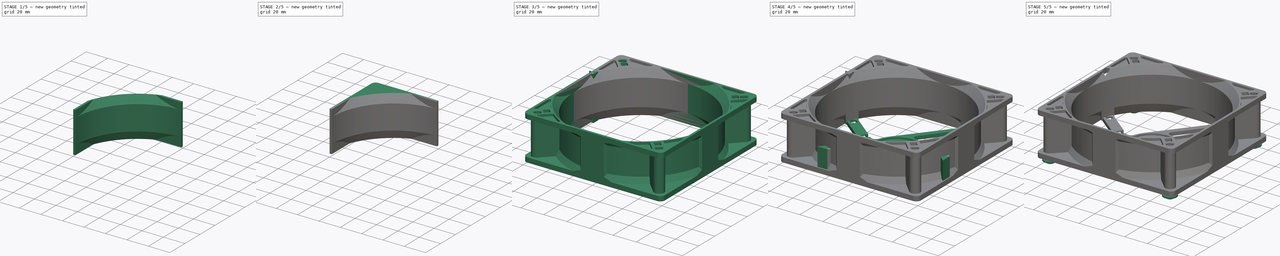
[diagram: build sequence overview — one tinted view per stage of 5, left to right]
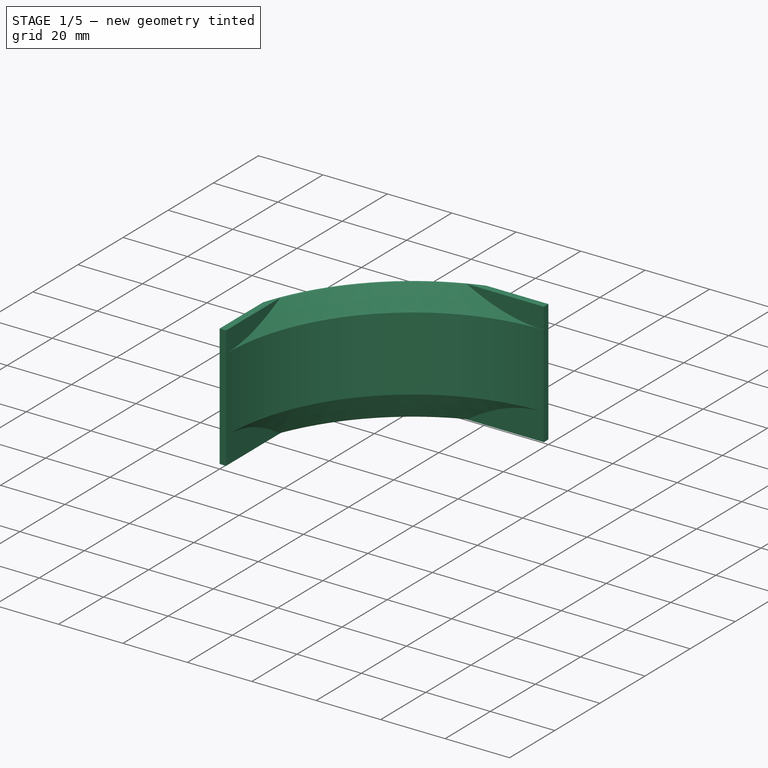
[diagram: stage 1 of 5 — iso view after this stage's code; geometry added in this stage tinted green]
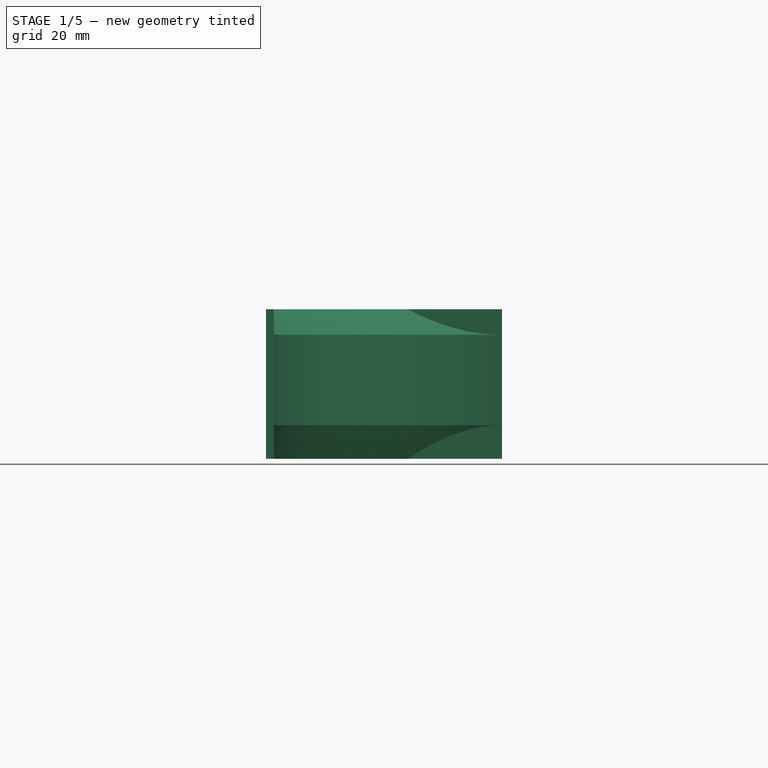
[diagram: stage 1 of 5 — front view after this stage's code; geometry added in this stage tinted green]
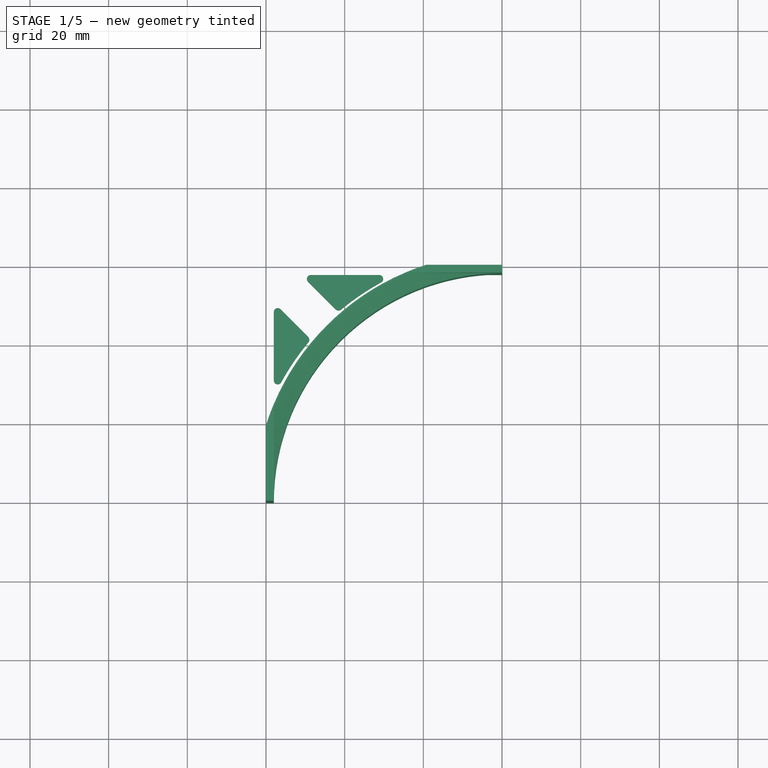
[diagram: stage 1 of 5 — top view after this stage's code; geometry added in this stage tinted green]
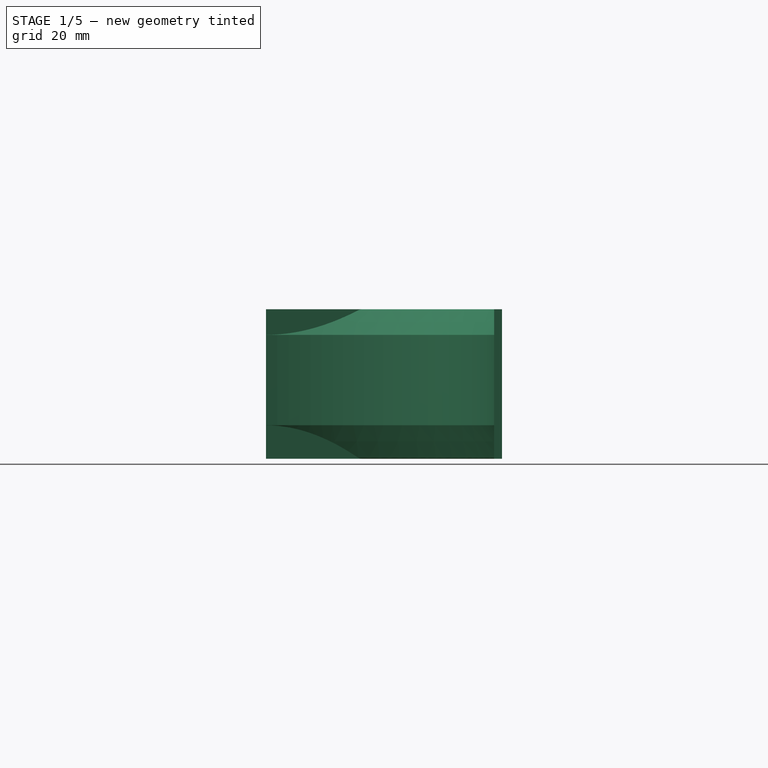
[diagram: stage 1 of 5 — right view after this stage's code; geometry added in this stage tinted green]
FCSTD DOCUMENT  (FreeCAD 0.21R33694 (Git))
Label: Fan_120x120xN
License: All rights reserved
LicenseURL: http://en.wikipedia.org/wiki/All_rights_reserved
objects: Sketcher::SketchObject×19, PartDesign::Pad×8, PartDesign::Pocket×5, Part::Extrusion×5, PartDesign::Body×4, App::Link×4, Part::MultiFuse×4, Part::FeaturePython×3, Part::Cut×3, PartDesign::Groove×2, PartDesign::Revolution×2, Part::Compound×2, Part::Part2DObjectPython×2, App::FeaturePython×1, Part::Feature×1, Part::Cone×1, PartDesign::SubShapeBinder×1, App::Part×1
note: 77 computed .brp shape members not serialized (recipe doc carries the construction recipe); baked Part::Feature solids carry a one-line shape summary decoded from their .brp

FEATURE [PartDesign::Body] Body001  label="FrameBracket"
  Group = -> [Sketch008,Pad004,Sketch009,Pocket004,Sketch010,Pocket005,Sketch011,Pocket006,Sketch012,Pad005,Sketch013,Pocket007,Sketch015,Pad006,Sketch017,Groove001]
  Origin = -> Origin001
  Tip = -> Groove001
FEATURE [App::FeaturePython] dd  # WARN: FeaturePython — macro-defined, semantics opaque (R4)
  DynamicData = Created with DynamicData (v2.53) workbench. | This is a simple container object built | for holding custom properties.
  ddAngleLimitDown = 8.5
  ddAngleLimitUp = 6.5
  ddCornerThickness = 4.1
  ddHeight = 38
  ddMidBracketDistance = 12
  ddOutThickness = 2
  ddRadGap = 5
  ddRadInner = 58
FEATURE [Part::Feature] Solid  label="Propeller"
  Placement = pos=(0,0,14.5) rot=(0,0,1;0rad)
  shape: bbox 112.1 x 112.2 x 17.02 mm, 97 faces (baked)
  expr: .Placement.Base.z = <<dd>>.ddHeight - <<dd>>.ddAngleLimitUp - 17 mm
FEATURE [Sketcher::SketchObject] Sketch001  label="SkBracket"
  FullyConstrained = true
  Placement = pos=(0,0,0.1) rot=(0,0,1;0rad)
  expr: Constraints[12] = <<dd>>.ddRadInner
  sketch-geometry (5):
    g0: ArcOfCircle CenterX=-52.9228 CenterY=52.9228 CenterZ=0 NormalX=0 NormalY=0 NormalZ=1 AngleXU=0 Radius=4.25 StartAngle=0.785398 EndAngle=3.92699
    g1: LineSegment StartX=-49.9176 StartY=55.928 StartZ=0 EndX=-37.8967 EndY=43.9071 EndZ=0
    g2: LineSegment StartX=-55.928 StartY=49.9176 StartZ=0 EndX=-43.9071 EndY=37.8967 EndZ=0
    g3: LineSegment StartX=-52.9228 StartY=52.9228 StartZ=0 EndX=-40.9019 EndY=40.9019 EndZ=0
    g4: ArcOfCircle CenterX=0 CenterY=0 CenterZ=0 NormalX=0 NormalY=0 NormalZ=1 AngleXU=0 Radius=58 StartAngle=2.28285 EndAngle=2.42954
  constraints (13):
    c: Radius(g0) = 4.25
    c: Equal(g1,g2)
    c: Angle(g2,g1) = 0
    c: Tangent(g2,g0) = -1.5708
    c: Tangent(g1,g0) = 1.5708
    c: Distance(g2) = 17
    c: Coincident(g3,g0)
    c: Symmetric(g4,g4,g3)
    c: Coincident(g4,g-1)
    c: Angle(g-2,g3) = 0.785398
    c: Coincident(g2,g4)
    c: Coincident(g4,g1)
    c: Radius(g4) = 58
FEATURE [Sketcher::SketchObject] Sketch002  label="SkRad"
  FullyConstrained = true
  MapMode = 2
  Placement = pos=(0,0,0) rot=(-0.57735,0.57735,0.57735;4.18879rad)
  Support = -> [YZ_Plane]
  expr: Constraints[20] = <<dd>>.ddHeight
  expr: Constraints[24] = <<dd>>.ddAngleLimitDown
  expr: Constraints[25] = <<dd>>.ddRadGap
  expr: Constraints[28] = <<dd>>.ddAngleLimitUp
  expr: Constraints[2] = <<dd>>.ddCornerThickness
  expr: Constraints[62] = <<dd>>.ddRadInner
  sketch-geometry (22):
    g0: LineSegment StartX=-59.5 StartY=8.88747 StartZ=0 EndX=-59.5 EndY=31.0107 EndZ=0
    g1: LineSegment StartX=-63 StartY=0 StartZ=0 EndX=-63 EndY=4.1 EndZ=0
    g2: LineSegment StartX=-63 StartY=4.1 StartZ=0 EndX=-62.1502 EndY=4.1 EndZ=0
    g3: LineSegment StartX=-62.1502 StartY=4.1 StartZ=0 EndX=-59.5 EndY=8.88747 EndZ=0
    g4: LineSegment StartX=-63 StartY=38 StartZ=0 EndX=-63 EndY=33.9 EndZ=0
    g5: LineSegment StartX=-63 StartY=33.9 StartZ=0 EndX=-61.6096 EndY=33.9 EndZ=0
    g6: LineSegment StartX=-61.6096 StartY=33.9 StartZ=0 EndX=-59.5 EndY=31.0107 EndZ=0
    g7: LineSegment StartX=-63 StartY=38 StartZ=0 EndX=0 EndY=38 EndZ=0
    g8: LineSegment StartX=-63 StartY=0 StartZ=0 EndX=0 EndY=-8.7e-15 EndZ=0
    g9: LineSegment StartX=0 StartY=38 StartZ=0 EndX=-2.3e-15 EndY=-7.1e-15 EndZ=0
    g10: ArcOfCircle CenterX=-63 CenterY=0.5 CenterZ=0 NormalX=0 NormalY=0 NormalZ=1 AngleXU=0 Radius=0.5 StartAngle=4.71239 EndAngle=5.77761
    g11: LineSegment StartX=-62.5626 StartY=0.257845 StartZ=0 EndX=-58 EndY=8.5 EndZ=0
    g12: ArcOfCircle CenterX=-63 CenterY=37.5 CenterZ=0 NormalX=0 NormalY=0 NormalZ=1 AngleXU=0 Radius=0.5 StartAngle=0.630676 EndAngle=1.5708
    g13: LineSegment StartX=-62.5962 StartY=37.7948 StartZ=0 EndX=-58 EndY=31.5 EndZ=0
    g14: LineSegment StartX=-58 StartY=31.5 StartZ=0 EndX=-58 EndY=8.5 EndZ=0
    g15: LineSegment StartX=-60.5548 StartY=32.4553 StartZ=0 EndX=-59.3434 EndY=33.3399 EndZ=0
    g16: LineSegment StartX=-59.5 StartY=19.9491 StartZ=0 EndX=-58 EndY=19.9491 EndZ=0
    g17: LineSegment StartX=-60.8251 StartY=6.49373 StartZ=0 EndX=-59.5127 EndY=5.76727 EndZ=0
    g18: LineSegment StartX=-63 StartY=38 StartZ=0 EndX=-63 EndY=37.5 EndZ=0
    g19: LineSegment StartX=-63 StartY=37.5 StartZ=0 EndX=-62.5962 EndY=37.7948 EndZ=0
    g20: LineSegment StartX=-63 StartY=0.5 StartZ=0 EndX=-63 EndY=0 EndZ=0
    g21: LineSegment StartX=-63 StartY=0.5 StartZ=0 EndX=-62.5626 EndY=0.257845 EndZ=0
  constraints (63):
    c: Coincident(g0,g3)
    c: Coincident(g2,g1)
    c: Distance(g1) = 4.1
    c: Angle(g1,g2) = 1.5708
    c: Angle(g1,g0) = 0
    c: Coincident(g2,g3)
    c: Coincident(g5,g4)
    c: Angle(g4,g5) = -1.5708
    c: Coincident(g5,g6)
    c: Angle(g5,g0) = 1.5708
    c: PointOnObject(g4,g1)
    c: Equal(g4,g1)
    c: Coincident(g7,g4)
    c: Coincident(g8,g1)
    c: Coincident(g9,g7)
    c: Angle(g4,g7) = 1.5708
    c: Angle(g8,g1) = 1.5708
    c: Angle(g7,g9) = 1.5708
    c: Coincident(g8,g9)
    c: Coincident(g0,g6)
    c: Distance(g4,g8) = 38
    c: Coincident(g10,g1)
    c: Angle(g11,g3) = 0
    c: Radius(g10) = 0.5
    c: Distance(g11,g8) = 8.5
    c: Distance(g11,g1) = 5
    c: Coincident(g12,g4)
    c: Equal(g12,g10)
    c: Distance(g13,g7) = 6.5
    c: Coincident(g14,g13)
    c: Coincident(g14,g11)
    c: Angle(g14,g0) = 0
    c: Angle(g6,g13) = 0
    c: PointOnObject(g15,g13)
    c: PointOnObject(g16,g14)
    c: PointOnObject(g17,g11)
    c: Angle(g17,g11) = 1.5708
    c: Equal(g17,g16)
    c: Equal(g16,g15)
    c: Angle(g16,g14) = 1.5708
    c: Angle(g13,g15) = 1.5708
    c: Symmetric(g6,g6,g15)
    c: Symmetric(g0,g0,g16)
    c: Symmetric(g3,g3,g17)
    c: Distance(g0,g14) = 1.5
    c: Coincident(g18,g4)
    c: Coincident(g18,g12)
    c: Angle(g18,g7) = 1.5708
    c: Coincident(g19,g12)
    c: Coincident(g19,g12)
    c: Angle(g19,g13) = 1.5708
    c: Coincident(g12,g13)
    c: Angle(g-1,g9) = 1.5708
    c: Coincident(g20,g10)
    c: Coincident(g20,g1)
    c: Coincident(g21,g10)
    c: Coincident(g21,g10)
    c: Angle(g11,g21) = 1.5708
    c: Angle(g8,g20) = 1.5708
    c: Coincident(g10,g11)
    c: PointOnObject(g1,g-1)
    c: PointOnObject(g7,g-2)
    c: Distance(g11,g9) = 58
FEATURE [PartDesign::Revolution] Revolution
  Angle = 90
  Axis = (1e-16,1e-16,1)
  Base = (0,0,0)
  Placement = pos=(0,0,0) rot=(1,1,1;2.0944rad)
  Profile = -> Sketch002
  ReferenceAxis = -> Z_Axis
FEATURE [PartDesign::Body] Body002  label="CornerBracket"
  Group = -> [Sketch001,Pad011,Sketch025,Groove004,Sketch032,Pad013,Binder001,Pad014]
  Origin = -> Origin002
  Tip = -> Pad014
FEATURE [Sketcher::SketchObject] Sketch036  label="SkSink002"
  FullyConstrained = true
  expr: Constraints[30] = <<dd>>.ddRadInner + <<dd>>.ddRadGap
  sketch-geometry (17):
    g0: ArcOfCircle CenterX=0 CenterY=0 CenterZ=0 NormalX=1.16e-14 NormalY=-1.34e-14 NormalZ=1 AngleXU=1.5708 Radius=63 StartAngle=5.40612 EndAngle=5.58945
    g1: ArcOfCircle CenterX=-57.0197 CenterY=31.2051 CenterZ=0 NormalX=6.9e-15 NormalY=1.26e-14 NormalZ=1 AngleXU=1.5708 Radius=1 StartAngle=6.7e-15 EndAngle=2.64085
    g2: LineSegment StartX=-58.0197 StartY=31.2051 StartZ=0 EndX=-58.0197 EndY=48.6051 EndZ=0
    g3: ArcOfCircle CenterX=-57.0197 CenterY=48.6051 CenterZ=0 NormalX=-1.47e-14 NormalY=-1.057e-13 NormalZ=1 AngleXU=1.5708 Radius=1 StartAngle=3.92699 EndAngle=6.28319
    g4: LineSegment StartX=-56.3126 StartY=49.3122 StartZ=0 EndX=-49.2692 EndY=42.2688 EndZ=0
    g5: ArcOfCircle CenterX=-49.9763 CenterY=41.5617 CenterZ=0 NormalX=7.06e-14 NormalY=1.64e-14 NormalZ=1 AngleXU=0.0462196 Radius=1 StartAngle=5.54323 EndAngle=7.02236
    g6: ArcOfCircle CenterX=0 CenterY=0 CenterZ=0 NormalX=0 NormalY=0 NormalZ=1 AngleXU=0 Radius=64 StartAngle=2.44786 EndAngle=2.64085
    g7: LineSegment StartX=-49.2074 StartY=40.9223 StartZ=0 EndX=-48.4385 EndY=40.2829 EndZ=0
    g8: ArcOfCircle CenterX=-31.2051 CenterY=57.0197 CenterZ=0 NormalX=6.9e-15 NormalY=1.26e-14 NormalZ=1 AngleXU=1.5708 Radius=1 StartAngle=2.07154 EndAngle=4.71239
    g9: LineSegment StartX=-31.2051 StartY=58.0197 StartZ=0 EndX=-48.6051 EndY=58.0197 EndZ=0
    g10: ArcOfCircle CenterX=-48.6051 CenterY=57.0197 CenterZ=0 NormalX=-1.47e-14 NormalY=-1.057e-13 NormalZ=1 AngleXU=1.5708 Radius=1 StartAngle=4.71239 EndAngle=7.06858
    g11: LineSegment StartX=-49.3122 StartY=56.3126 StartZ=0 EndX=-42.2688 EndY=49.2692 EndZ=0
    g12: ArcOfCircle CenterX=-41.5617 CenterY=49.9763 CenterZ=0 NormalX=7.06e-14 NormalY=1.64e-14 NormalZ=1 AngleXU=0.0462196 Radius=1 StartAngle=3.88077 EndAngle=5.3599
    g13: ArcOfCircle CenterX=0 CenterY=0 CenterZ=0 NormalX=0 NormalY=0 NormalZ=1 AngleXU=0 Radius=64 StartAngle=2.07154 EndAngle=2.26453
    g14: LineSegment StartX=-40.9223 StartY=49.2074 StartZ=0 EndX=-40.2829 EndY=48.4385 EndZ=0
    g15: LineSegment StartX=-42.2688 StartY=49.2692 StartZ=0 EndX=-49.2692 EndY=42.2688 EndZ=0
    g16: LineSegment StartX=-45.769 StartY=45.769 StartZ=0 EndX=-44.5477 EndY=44.5477 EndZ=0
  constraints (43):
    c: Tangent(g1,g6) = 1.5708
    c: Tangent(g5,g6) = 1.5708
    c: Radius(g3) = 1
    c: Equal(g5,g1)
    c: Equal(g5,g3)
    c: Tangent(g3,g4) = 1.5708
    c: Tangent(g4,g5) = 1.5708
    c: Tangent(g1,g2) = 1.5708
    c: Tangent(g2,g3) = 1.5708
    c: Coincident(g7,g5)
    c: PointOnObject(g0,g7)
    c: Tangent(g8,g13) = 1.5708
    c: Tangent(g12,g13) = 1.5708
    c: Equal(g12,g8)
    c: Equal(g12,g10)
    c: Tangent(g10,g11) = -1.5708
    c: Tangent(g11,g12) = -1.5708
    c: Tangent(g8,g9) = -1.5708
    c: Tangent(g9,g10) = -1.5708
    c: Coincident(g14,g12)
    c: PointOnObject(g6,g14)
    c: Coincident(g0,g6)
    c: Coincident(g0,g13)
    c: Equal(g4,g11)
    c: Distance(g14) = 1
    c: Equal(g14,g7)
    c: Angle(g11,g9) = 0.785398
    c: Equal(g10,g3)
    c: Angle(g2,g4) = 0.785398
    c: Distance(g9) = 17.4
    c: Radius(g0) = 63
    c: Coincident(g0,g-1)
    c: Coincident(g15,g11)
    c: Coincident(g15,g4)
    c: Distance(g15) = 9.9
    c: Angle(g15,g4) = 1.5708
    c: Angle(g11,g15) = 1.5708
    c: PointOnObject(g16,g0)
    c: Symmetric(g15,g15,g16)
    c: Angle(g16,g15) = 1.5708
    c: Angle(g-2,g16) = 0.785398
    c: Coincident(g0,g7)
    c: Coincident(g0,g14)
FEATURE [Part::Extrusion] Extrude004  label="CornerSink"
  Base = -> Sketch036
  Dir = (0,0,1)
  DirMode = 2
  FaceMakerClass = Part::FaceMakerBullseye
  LengthFwd = 2.05
  LengthRev = 0
  Solid = true
  Symmetric = false
  expr: LengthFwd = <<dd>>.ddCornerThickness / 2
FEATURE [Sketcher::SketchObject] Sketch039  label="SkGrooveOut001"
  AttachmentOffset = pos=(-58,0,0) rot=(0,1,0;0rad)
  FullyConstrained = true
  MapMode = 2
  Placement = pos=(1.29e-14,58,-1.29e-14) rot=(-0.57735,0.57735,0.57735;4.18879rad)
  Support = -> [YZ_Plane004]
  expr: Constraints[16] = <<dd>>.ddRadGap
  expr: Constraints[2] = <<dd>>.ddCornerThickness
  expr: Constraints[56] = <<dd>>.ddHeight
  expr: Constraints[59] = <<dd>>.ddAngleLimitUp
  expr: Constraints[60] = <<dd>>.ddAngleLimitDown
  sketch-geometry (22):
    g0: LineSegment StartX=-1.5 StartY=8.88747 StartZ=0 EndX=-1.5 EndY=31.0107 EndZ=0
    g1: LineSegment StartX=-5 StartY=0 StartZ=0 EndX=-5 EndY=4.1 EndZ=0
    g2: LineSegment StartX=-5 StartY=4.1 StartZ=0 EndX=-4.15017 EndY=4.1 EndZ=0
    g3: LineSegment StartX=-4.15017 StartY=4.1 StartZ=0 EndX=-1.5 EndY=8.88747 EndZ=0
    g4: LineSegment StartX=-5 StartY=38 StartZ=0 EndX=-5 EndY=33.9 EndZ=0
    g5: LineSegment StartX=-5 StartY=33.9 StartZ=0 EndX=-3.60965 EndY=33.9 EndZ=0
    g6: LineSegment StartX=-3.60965 StartY=33.9 StartZ=0 EndX=-1.5 EndY=31.0107 EndZ=0
    g7: ArcOfCircle CenterX=-5 CenterY=0.5 CenterZ=0 NormalX=0 NormalY=0 NormalZ=1 AngleXU=0 Radius=0.5 StartAngle=4.71239 EndAngle=5.77761
    g8: LineSegment StartX=-4.56255 StartY=0.257845 StartZ=0 EndX=4.4e-15 EndY=8.5 EndZ=0
    g9: ArcOfCircle CenterX=-5 CenterY=37.5 CenterZ=0 NormalX=0 NormalY=0 NormalZ=1 AngleXU=0 Radius=0.5 StartAngle=0.630676 EndAngle=1.5708
    g10: LineSegment StartX=-4.59619 StartY=37.7948 StartZ=0 EndX=0 EndY=31.5 EndZ=0
    g11: LineSegment StartX=0 StartY=31.5 StartZ=0 EndX=4.8e-15 EndY=8.5 EndZ=0
    g12: LineSegment StartX=-2.55482 StartY=32.4553 StartZ=0 EndX=-1.34338 EndY=33.3399 EndZ=0
    g13: LineSegment StartX=-1.5 StartY=19.9491 StartZ=0 EndX=2.4e-15 EndY=19.9491 EndZ=0
    g14: LineSegment StartX=-2.82508 StartY=6.49373 StartZ=0 EndX=-1.51274 EndY=5.76727 EndZ=0
    g15: LineSegment StartX=-5 StartY=38 StartZ=0 EndX=-5 EndY=37.5 EndZ=0
    g16: LineSegment StartX=-5 StartY=37.5 StartZ=0 EndX=-4.59619 EndY=37.7948 EndZ=0
    g17: LineSegment StartX=-5 StartY=0.5 StartZ=0 EndX=-5 EndY=0 EndZ=0
    g18: LineSegment StartX=-5 StartY=0.5 StartZ=0 EndX=-4.56255 EndY=0.257845 EndZ=0
    g19: LineSegment StartX=-5 StartY=38 StartZ=0 EndX=-6 EndY=38 EndZ=0
    g20: LineSegment StartX=-6 StartY=38 StartZ=0 EndX=-6 EndY=0 EndZ=0
    g21: LineSegment StartX=-6 StartY=0 StartZ=0 EndX=-5 EndY=0 EndZ=0
  constraints (63):
    c: Coincident(g0,g3)
    c: Coincident(g2,g1)
    c: Distance(g1) = 4.1
    c: Angle(g1,g2) = 1.5708
    c: Angle(g1,g0) = 0
    c: Coincident(g2,g3)
    c: Coincident(g5,g4)
    c: Angle(g4,g5) = -1.5708
    c: Coincident(g5,g6)
    c: Angle(g5,g0) = 1.5708
    c: PointOnObject(g4,g1)
    c: Equal(g4,g1)
    c: Coincident(g0,g6)
    c: Coincident(g7,g1)
    c: Angle(g8,g3) = 0
    c: Radius(g7) = 0.5
    c: Distance(g8,g1) = 5
    c: Coincident(g9,g4)
    c: Equal(g9,g7)
    c: Coincident(g11,g10)
    c: Coincident(g11,g8)
    c: Angle(g11,g0) = 0
    c: Angle(g6,g10) = 0
    c: PointOnObject(g12,g10)
    c: PointOnObject(g13,g11)
    c: PointOnObject(g14,g8)
    c: Angle(g14,g8) = 1.5708
    c: Equal(g14,g13)
    c: Equal(g13,g12)
    c: Angle(g13,g11) = 1.5708
    c: Angle(g10,g12) = 1.5708
    c: Symmetric(g6,g6,g12)
    c: Symmetric(g0,g0,g13)
    c: Symmetric(g3,g3,g14)
    c: Distance(g0,g11) = 1.5
    c: Coincident(g15,g4)
    c: Coincident(g15,g9)
    c: Coincident(g16,g9)
    c: Coincident(g16,g9)
    c: Angle(g16,g10) = 1.5708
    c: Coincident(g9,g10)
    c: Coincident(g17,g7)
    c: Coincident(g17,g1)
    c: Coincident(g18,g7)
    c: Coincident(g18,g7)
    c: Angle(g8,g18) = 1.5708
    c: Coincident(g7,g8)
    c: PointOnObject(g1,g-1)
    c: Coincident(g19,g4)
    c: Coincident(g20,g19)
    c: Coincident(g21,g20)
    c: Coincident(g21,g1)
    c: Equal(g21,g19)
    c: Angle(g1,g21) = 1.5708
    c: Angle(g21,g20) = 1.5708
    c: PointOnObject(g20,g-1)
    c: Distance(g4,g21) = 38
    c: Angle(g19,g15) = 1.5708
    c: Angle(g17,g21) = 1.5708
    c: Distance(g10,g19) = 6.5
    c: Distance(g8,g21) = 8.5
    c: Distance(g19) = 1
    c: PointOnObject(g10,g-2)
FEATURE [PartDesign::Revolution] Revolution002
  Angle = 90
  Axis = (1e-16,1e-16,1)
  Base = (0,0,0)
  Placement = pos=(0,0,0) rot=(1,1,1;2.0944rad)
  Profile = -> Sketch039
  ReferenceAxis = -> Z_Axis004
FEATURE [Sketcher::SketchObject] Sketch040  label="SkFill002"
  FullyConstrained = true
  Placement = pos=(0,0,-0.2) rot=(0,0,1;0rad)
  expr: Constraints[13] = <<dd>>.ddRadInner + <<dd>>.ddOutThickness
  sketch-geometry (7):
    g0: LineSegment StartX=-80 StartY=-1 StartZ=0 EndX=-60 EndY=-1 EndZ=0
    g1: LineSegment StartX=1 StartY=60 StartZ=0 EndX=1 EndY=80 EndZ=0
    g2: LineSegment StartX=-80 StartY=80 StartZ=0 EndX=1 EndY=80 EndZ=0
    g3: LineSegment StartX=-80 StartY=80 StartZ=0 EndX=-80 EndY=-1 EndZ=0
    g4: ArcOfCircle CenterX=0 CenterY=0 CenterZ=0 NormalX=0 NormalY=0 NormalZ=1 AngleXU=0 Radius=63 StartAngle=1.88064 EndAngle=2.83175
    g5: LineSegment StartX=1 StartY=60 StartZ=0 EndX=-19.2094 EndY=60 EndZ=0
    g6: LineSegment StartX=-60 StartY=19.2094 StartZ=0 EndX=-60 EndY=-1 EndZ=0
  constraints (21):
    c: Equal(g1,g0)
    c: Coincident(g1,g2)
    c: Distance(g1) = 20
    c: Coincident(g0,g3)
    c: Angle(g2,g1) = 1.5708
    c: Angle(g0,g3) = 1.5708
    c: Equal(g3,g2)
    c: Coincident(g5,g1)
    c: Angle(g5,g2) = 0
    c: Coincident(g6,g0)
    c: Angle(g6,g3) = 0
    c: Angle(g-1,g6) = 1.5708
    c: Coincident(g4,g-1)
    c: Distance(g4,g5) = 60
    c: Radius(g4) = 63
    c: Coincident(g3,g2)
    c: Coincident(g4,g5)
    c: Coincident(g4,g6)
    c: DistanceX(g-2,g5) = 1
    c: DistanceY(g-1,g6) = -1
    c: Angle(g5,g-2) = 1.5708
FEATURE [Sketcher::SketchObject] Sketch041
  FullyConstrained = true
  expr: Constraints[10] = <<dd>>.ddMidBracketDistance
  expr: Constraints[11] = <<dd>>.ddRadInner
  sketch-geometry (4):
    g0: LineSegment StartX=-70 StartY=0 StartZ=0 EndX=0 EndY=70 EndZ=0
    g1: LineSegment StartX=0 StartY=70 StartZ=0 EndX=0 EndY=0 EndZ=0
    g2: LineSegment StartX=0 StartY=0 StartZ=0 EndX=-70 EndY=0 EndZ=0
    g3: LineSegment StartX=-12 StartY=58 StartZ=0 EndX=0 EndY=58 EndZ=0
  constraints (12):
    c: PointOnObject(g0,g-1)
    c: PointOnObject(g0,g-2)
    c: Coincident(g1,g0)
    c: Coincident(g2,g1)
    c: Coincident(g2,g0)
    c: Equal(g1,g2)
    c: Coincident(g1,g-1)
    c: PointOnObject(g3,g0)
    c: PointOnObject(g3,g1)
    c: Angle(g3,g1) = 1.5708
    c: Distance(g3) = 12
    c: Distance(g1,g3) = 58
FEATURE [PartDesign::Pocket] Pocket008
  BaseFeature = -> Revolution002
  Direction = (0,0,-1)
  Length = 38
  Length2 = 5
  Placement = pos=(0,0,0) rot=(1,1,1;2.0944rad)
  Profile = -> Sketch041
  ReferenceAxis = -> Sketch041 [N_Axis]
  Reversed = true
  Type = 0
  expr: Length = <<dd>>.ddHeight
FEATURE [PartDesign::Pad] Pad
  BaseFeature = -> Pocket008
  Direction = (0,0,1)
  Length = 38.5
  Length2 = 10
  Placement = pos=(0,0,0) rot=(1,1,1;2.0944rad)
  Profile = -> Sketch040
  ReferenceAxis = -> Sketch040 [N_Axis]
  Type = 0
  expr: Length = <<dd>>.ddHeight + 0.5 mm
FEATURE [PartDesign::Body] Body004  label="CornerOutline"
  Group = -> [Sketch039,Revolution002,Pocket008,Sketch040,Pad,Sketch041]
  Origin = -> Origin004
  Tip = -> Pad
FEATURE [PartDesign::Pad] Pad017
  BaseFeature = -> Revolution
  Direction = (0,0,1)
  Length = 38
  Length2 = 10
  Placement = pos=(0,0,0) rot=(1,1,1;2.0944rad)
  Profile = -> Sketch021
  ReferenceAxis = -> Sketch021 [N_Axis]
  Type = 0
  expr: Length = <<dd>>.ddHeight
FEATURE [PartDesign::Body] Body  label="CornerRevol"
  Group = -> [Revolution,Sketch002,Sketch021,Pad017]
  Origin = -> Origin
  Tip = -> Pad017
FEATURE [Part::Cut] Cut002  label="CornerMid"
  Base = -> Body
  Refine = true
  Tool = -> Body004
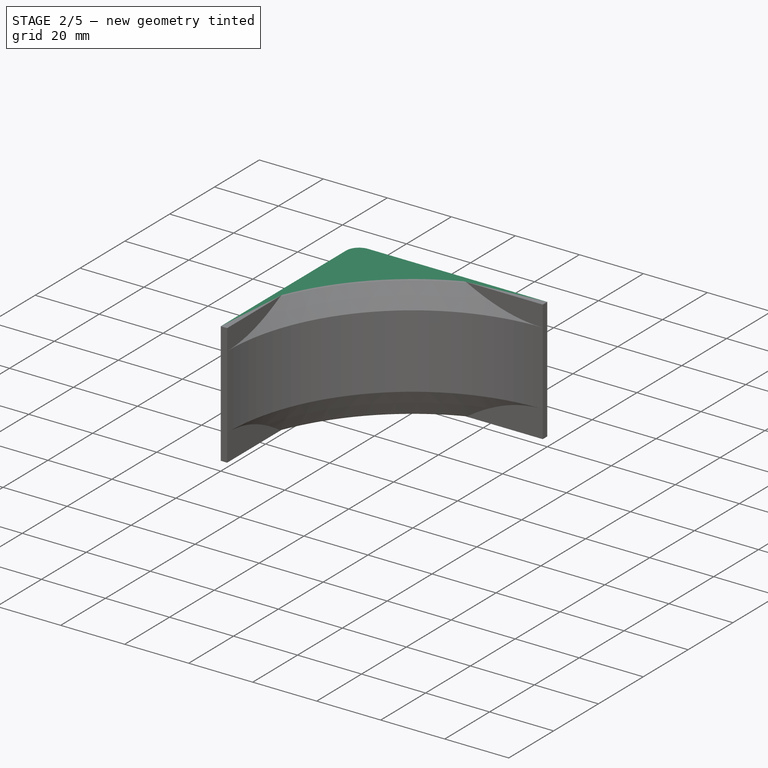
[diagram: stage 2 of 5 — iso view after this stage's code; geometry added in this stage tinted green]
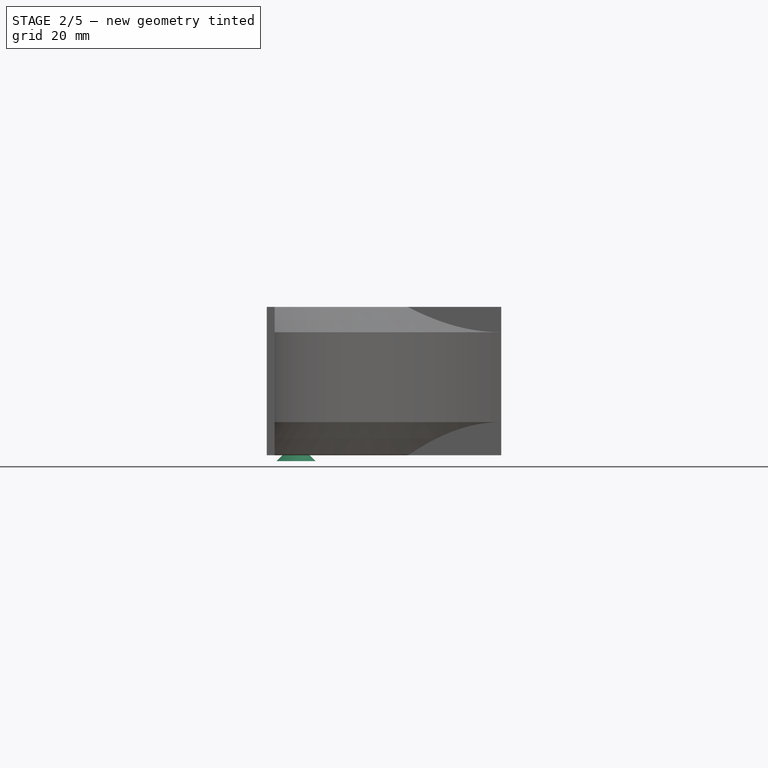
[diagram: stage 2 of 5 — front view after this stage's code; geometry added in this stage tinted green]
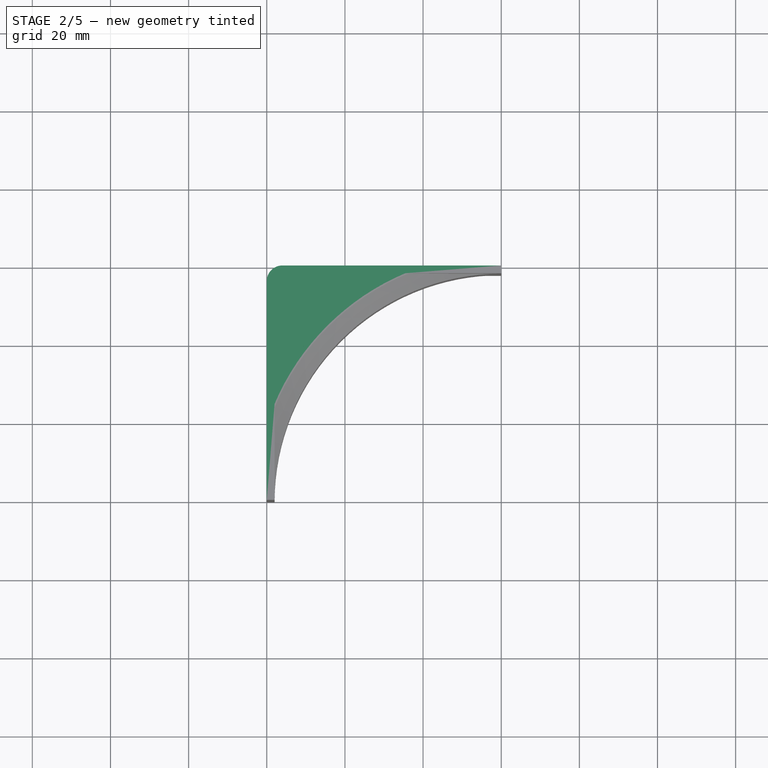
[diagram: stage 2 of 5 — top view after this stage's code; geometry added in this stage tinted green]
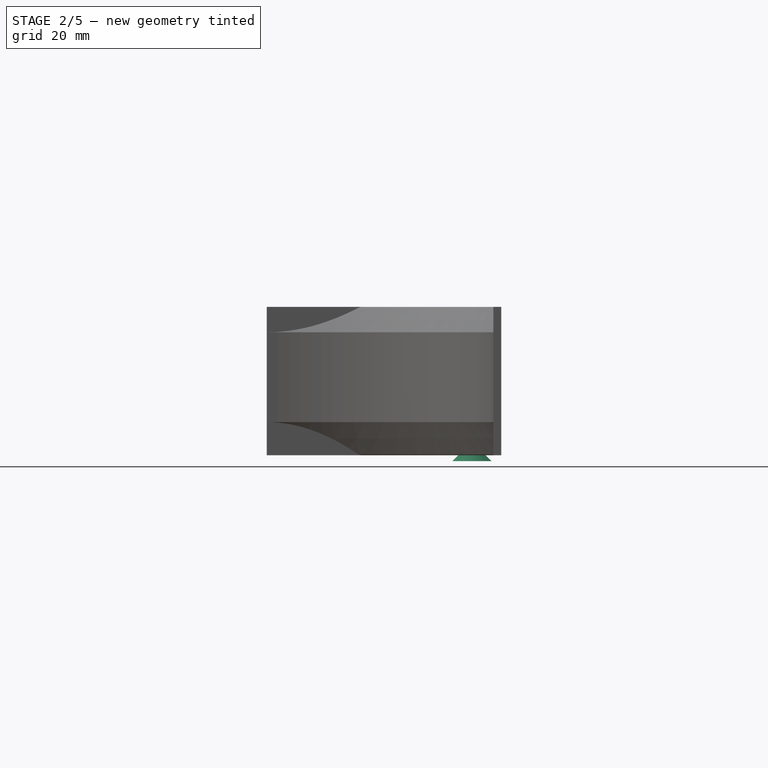
[diagram: stage 2 of 5 — right view after this stage's code; geometry added in this stage tinted green]
FEATURE [Part::Cone] Cone
  Angle = 360
  AttacherType = Attacher::AttachEngine3D
  Height = 5
  Placement = pos=(-52.5,52.5,-1.5) rot=(0,0,1;0rad)
  Radius1 = 5
  Radius2 = 0
FEATURE [PartDesign::Pad] Pad011
  Direction = (0,0,1)
  Length = 37.8
  Length2 = 10
  Placement = pos=(0,0,0.1) rot=(0,0,1;0rad)
  Profile = -> Sketch001
  ReferenceAxis = -> Sketch001 [N_Axis]
  Type = 0
  expr: Length = <<dd>>.ddHeight - 0.2 mm
FEATURE [Sketcher::SketchObject] Sketch025  label="SkGrooveIn001"
  FullyConstrained = true
  MapMode = 4
  Placement = pos=(0,0,0) rot=(0.57735,-0.57735,-0.57735;2.0944rad)
  Support = -> [XY_Plane002]
  expr: Constraints[12] = dd.ddRadGap
  expr: Constraints[15] = <<dd>>.ddAngleLimitUp
  expr: Constraints[16] = <<dd>>.ddAngleLimitDown
  expr: Constraints[2] = <<dd>>.ddHeight
  expr: Constraints[8] = <<dd>>.ddRadInner + 0.3 mm
  sketch-geometry (12):
    g0: LineSegment StartX=-58.3 StartY=31.5 StartZ=0 EndX=-58.3 EndY=8.5 EndZ=0
    g1: LineSegment StartX=-58.3 StartY=8.5 StartZ=0 EndX=-62.8626 EndY=0.257845 EndZ=0
    g2: ArcOfCircle CenterX=-63.3 CenterY=0.5 CenterZ=0 NormalX=0 NormalY=0 NormalZ=1 AngleXU=0 Radius=0.5 StartAngle=4.71239 EndAngle=5.77761
    g3: LineSegment StartX=-58.3 StartY=31.5 StartZ=0 EndX=-62.8962 EndY=37.7948 EndZ=0
    g4: ArcOfCircle CenterX=-63.3 CenterY=37.5 CenterZ=0 NormalX=0 NormalY=0 NormalZ=1 AngleXU=0 Radius=0.5 StartAngle=0.630676 EndAngle=1.5708
    g5: LineSegment StartX=-63.3 StartY=38 StartZ=0 EndX=0 EndY=38 EndZ=0
    g6: LineSegment StartX=0 StartY=38 StartZ=0 EndX=0 EndY=-7.1e-15 EndZ=0
    g7: LineSegment StartX=-63.3 StartY=0 StartZ=0 EndX=0 EndY=-7.8e-15 EndZ=0
    g8: LineSegment StartX=-63.3 StartY=37.5 StartZ=0 EndX=-62.8962 EndY=37.7948 EndZ=0
    g9: LineSegment StartX=-63.3 StartY=37.5 StartZ=0 EndX=-63.3 EndY=38 EndZ=0
    g10: LineSegment StartX=-63.3 StartY=0.5 StartZ=0 EndX=-62.8626 EndY=0.257845 EndZ=0
    g11: LineSegment StartX=-63.3 StartY=0.5 StartZ=0 EndX=-63.3 EndY=0 EndZ=0
  constraints (34):
    c: Angle(g-1,g0) = 1.5708
    c: Radius(g4) = 0.5
    c: Distance(g4,g2) = 38
    c: Coincident(g6,g5)
    c: Coincident(g7,g6)
    c: Angle(g6,g7) = 1.5708
    c: Equal(g7,g5)
    c: Angle(g5,g6) = 1.5708
    c: Distance(g-1,g0) = 58.3
    c: Equal(g2,g4)
    c: PointOnObject(g5,g-2)
    c: PointOnObject(g6,g-2)
    c: Distance(g4,g0) = 5
    c: Coincident(g0,g3)
    c: Coincident(g0,g1)
    c: Distance(g0,g5) = 6.5
    c: Distance(g0,g7) = 8.5
    c: Coincident(g8,g4)
    c: Coincident(g8,g3)
    c: Coincident(g9,g4)
    c: Coincident(g9,g4)
    c: Coincident(g4,g5)
    c: Coincident(g3,g4)
    c: Angle(g8,g3) = 1.5708
    c: Angle(g9,g5) = 1.5708
    c: Coincident(g10,g2)
    c: Coincident(g10,g1)
    c: Coincident(g11,g2)
    c: Coincident(g11,g2)
    c: Angle(g1,g10) = 1.5708
    c: Angle(g7,g11) = 1.5708
    c: Coincident(g2,g7)
    c: Coincident(g1,g2)
    c: PointOnObject(g2,g-1)
FEATURE [PartDesign::Groove] Groove004  label="GrooveBracket"
  Angle = 360
  Axis = (0,0,1)
  Base = (0,0,0)
  BaseFeature = -> Pad011
  Placement = pos=(0,0,0.1) rot=(0,0,1;0rad)
  Profile = -> Sketch025
  ReferenceAxis = -> Sketch025 [V_Axis]
FEATURE [App::Link] Link003  label="Cone001"
  LinkPlacement = pos=(0,105,38) rot=(1,0,0;3.14159rad)
  LinkTransform = true
  LinkedObject = -> Cone
  Placement = pos=(0,105,38) rot=(1,0,0;3.14159rad)
  expr: .LinkPlacement.Base.z = <<dd>>.ddHeight
FEATURE [Sketcher::SketchObject] Sketch032  label="SkCorner002"
  FullyConstrained = true
  expr: Constraints[6] = <<dd>>.ddRadInner + <<dd>>.ddRadGap
  sketch-geometry (4):
    g0: LineSegment StartX=-56 StartY=60 StartZ=0 EndX=-19.2094 EndY=60 EndZ=0
    g1: ArcOfCircle CenterX=-56 CenterY=56 CenterZ=0 NormalX=-7.7e-15 NormalY=5.7e-15 NormalZ=1 AngleXU=-3.14159 Radius=4 StartAngle=4.71239 EndAngle=6.28319
    g2: LineSegment StartX=-60 StartY=19.2094 StartZ=0 EndX=-60 EndY=56 EndZ=0
    g3: ArcOfCircle CenterX=0 CenterY=0 CenterZ=0 NormalX=1.16e-14 NormalY=-1.34e-14 NormalZ=1 AngleXU=1.5708 Radius=63 StartAngle=5.02223 EndAngle=5.97334
  constraints (11):
    c: Radius(g1) = 4
    c: Tangent(g0,g1) = 1.5708
    c: Tangent(g1,g2) = 1.5708
    c: Equal(g2,g0)
    c: Angle(g2,g0) = 1.5708
    c: Horizontal(g0)
    c: Radius(g3) = 63
    c: Coincident(g3,g-1)
    c: Coincident(g0,g3)
    c: Coincident(g2,g3)
    c: Distance(g3,g2) = 60
FEATURE [PartDesign::Pad] Pad013
  BaseFeature = -> Groove004
  Direction = (0,0,1)
  Length = 4.1
  Length2 = 10
  Placement = pos=(0,0,0.1) rot=(0,0,1;0rad)
  Profile = -> Sketch032
  ReferenceAxis = -> Sketch032 [N_Axis]
  Type = 0
  expr: Length = <<dd>>.ddCornerThickness
FEATURE [PartDesign::SubShapeBinder] Binder001
  BindCopyOnChange = 0
  BindMode = 0
  ClaimChildren = false
  Context = -> Body002 [Binder001.]
  Fuse = false
  MakeFace = true
  OffsetFill = false
  OffsetIntersection = false
  OffsetJoinType = 0
  OffsetOpenResult = false
  PartialLoad = false
  Placement = pos=(0,0,38) rot=(0,0,1;0rad)
  Relative = true
  Support = -> [Pad013[Sketch032.]]
  _Version = 2
  expr: .Placement.Base.z = <<dd>>.ddHeight
FEATURE [PartDesign::Pad] Pad014
  BaseFeature = -> Pad013
  Direction = (-1.48e-14,1.41e-14,1)
  Length = 4.1
  Length2 = 10
  Placement = pos=(0,0,0.1) rot=(0,0,1;0rad)
  Profile = -> Binder001
  Reversed = true
  Type = 0
  expr: Length = <<dd>>.ddCornerThickness
FEATURE [Part::FeaturePython] Array001  label="SinkMulti"  # Draft array (typed FeaturePython)
  AlwaysSyncPlacement = false
  Angle = 360
  ArrayType = 0
  Axis = (0,0,1)
  Base = -> Extrude004
  Center = (0,0,0)
  Count = 2
  ExpandArray = false
  Fuse = false
  IntervalAxis = (0,0,0)
  IntervalX = (100,0,0)
  IntervalY = (0,25,0)
  IntervalZ = (0,0,35.95)
  NumberCircles = 3
  NumberPolar = 5
  NumberX = 1
  NumberY = 1
  NumberZ = 2
  PlacementList = 2 placements: [(0,0,0),(0,0,35.95)]
  RadialDistance = 50
  ScaleList = (2) [(1,1,1),(1,1,1)]
  Symmetry = 1
  TangentialDistance = 25
  expr: .IntervalZ.z = <<dd>>.ddHeight - <<dd>>.ddCornerThickness / 2
FEATURE [Part::MultiFuse] Fusion003  label="Corner_"
  Refine = true
  Shapes = -> [Body002,Cut002]
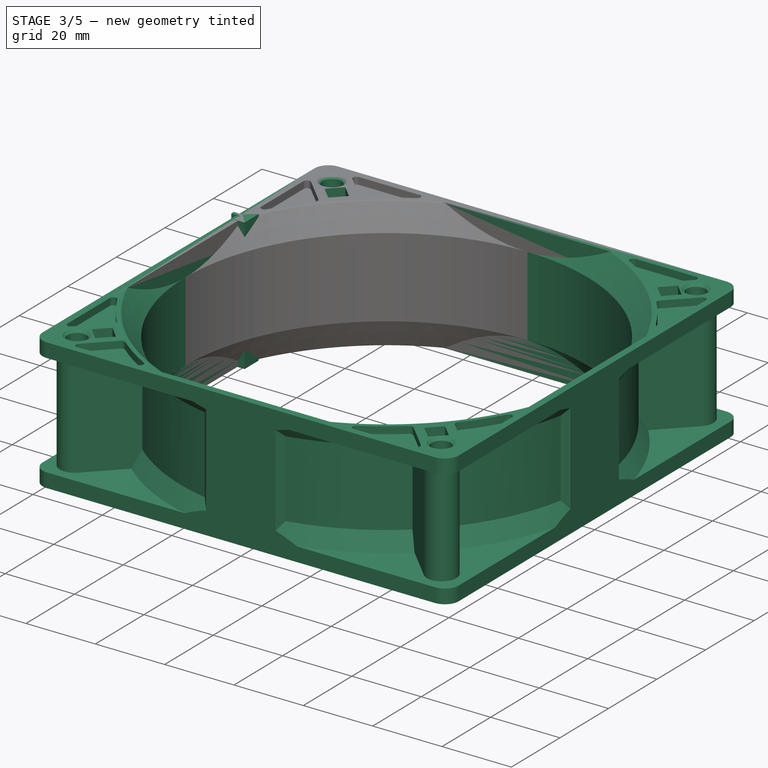
[diagram: stage 3 of 5 — iso view after this stage's code; geometry added in this stage tinted green]
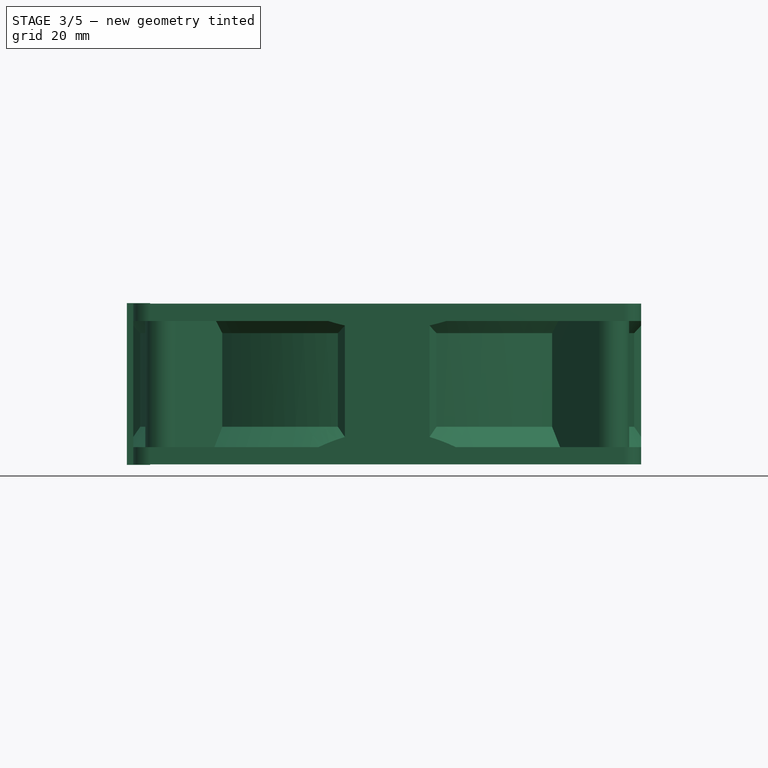
[diagram: stage 3 of 5 — front view after this stage's code; geometry added in this stage tinted green]
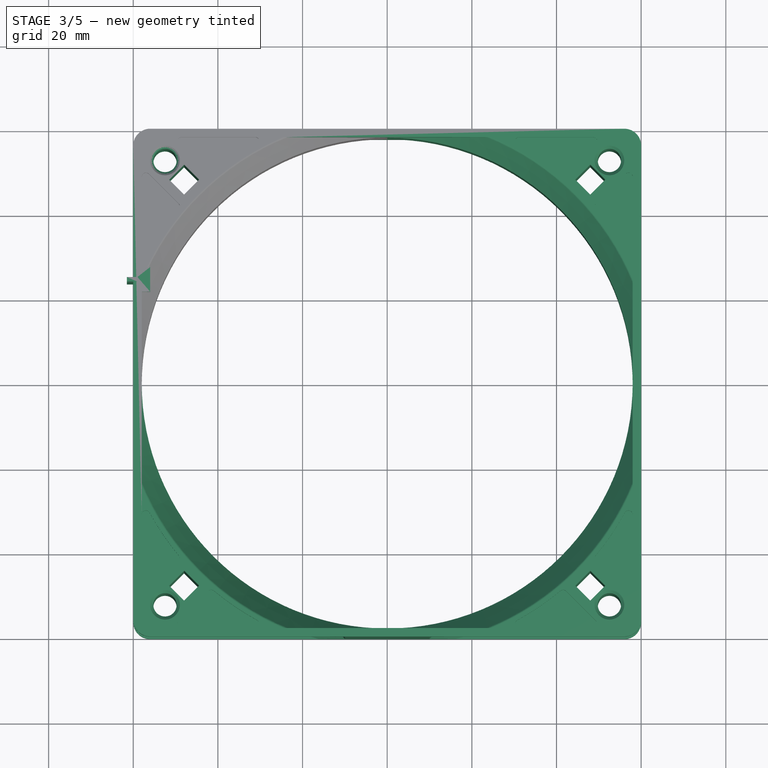
[diagram: stage 3 of 5 — top view after this stage's code; geometry added in this stage tinted green]
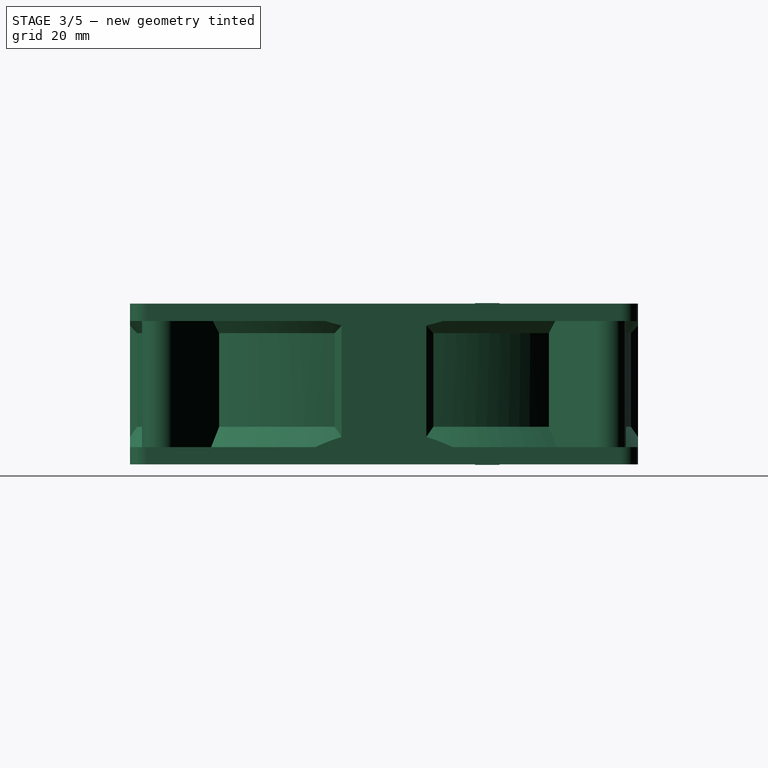
[diagram: stage 3 of 5 — right view after this stage's code; geometry added in this stage tinted green]
FEATURE [Sketcher::SketchObject] Sketch021
  FullyConstrained = true
  MapMode = 2
  Support = -> [XY_Plane]
  expr: Constraints[3] = <<dd>>.ddRadGap
  expr: Constraints[4] = <<dd>>.ddRadInner
  sketch-geometry (8):
    g0: LineSegment StartX=0 StartY=63 StartZ=0 EndX=0 EndY=58 EndZ=0
    g1: LineSegment StartX=-58 StartY=0 StartZ=0 EndX=-63 EndY=0 EndZ=0
    g2: LineSegment StartX=-58 StartY=0 StartZ=0 EndX=0 EndY=0 EndZ=0
    g3: LineSegment StartX=-63 StartY=0 StartZ=0 EndX=-63 EndY=63 EndZ=0
    g4: LineSegment StartX=-63 StartY=63 StartZ=0 EndX=0 EndY=63 EndZ=0
    g5: ArcOfCircle CenterX=0 CenterY=0 CenterZ=0 NormalX=0 NormalY=0 NormalZ=1 AngleXU=0 Radius=63 StartAngle=1.97189 EndAngle=2.7405
    g6: LineSegment StartX=0 StartY=58 StartZ=0 EndX=-24.5967 EndY=58 EndZ=0
    g7: LineSegment StartX=-58 StartY=0 StartZ=0 EndX=-58 EndY=24.5967 EndZ=0
  constraints (24):
    c: PointOnObject(g0,g-2)
    c: PointOnObject(g1,g-1)
    c: Equal(g0,g1)
    c: Distance(g1) = 5
    c: Distance(g2) = 58
    c: Coincident(g3,g1)
    c: Coincident(g4,g3)
    c: Coincident(g4,g0)
    c: Angle(g3,g4) = 1.5708
    c: Angle(g1,g3) = 1.5708
    c: Coincident(g2,g-1)
    c: Coincident(g5,g2)
    c: PointOnObject(g0,g-2)
    c: PointOnObject(g1,g-1)
    c: Coincident(g6,g0)
    c: Coincident(g6,g5)
    c: Coincident(g7,g1)
    c: Coincident(g7,g5)
    c: Equal(g6,g7)
    c: Angle(g7,g1) = 1.5708
    c: Angle(g0,g6) = 1.5708
    c: Coincident(g2,g1)
    c: PointOnObject(g1,g5)
    c: Radius(g5) = 63
FEATURE [Sketcher::SketchObject] Sketch014  label="SkCableHole"
  FullyConstrained = true
  Placement = pos=(0,0,-0.1) rot=(1,0,0;0rad)
  expr: Constraints[2] = <<dd>>.ddRadInner + 2 mm
  sketch-geometry (9):
    g0: LineSegment StartX=-56.0148 StartY=21.5021 StartZ=0 EndX=-59.0148 EndY=21.5021 EndZ=0
    g1: LineSegment StartX=-56.0148 StartY=21.5021 StartZ=0 EndX=0 EndY=0 EndZ=0
    g2: LineSegment StartX=-61.5148 StartY=24.9521 StartZ=0 EndX=-59.0148 EndY=24.9521 EndZ=0
    g3: LineSegment StartX=-59.0148 StartY=24.9521 StartZ=0 EndX=-59.0148 EndY=27.3021 EndZ=0
    g4: LineSegment StartX=-59.0148 StartY=27.3021 StartZ=0 EndX=-56.0148 EndY=27.3021 EndZ=0
    g5: LineSegment StartX=-56.0148 StartY=27.3021 StartZ=0 EndX=-56.0148 EndY=21.5021 EndZ=0
    g6: LineSegment StartX=-59.0148 StartY=21.5021 StartZ=0 EndX=-59.0148 EndY=23.8521 EndZ=0
    g7: LineSegment StartX=-59.0148 StartY=23.8521 StartZ=0 EndX=-61.5148 EndY=23.8521 EndZ=0
    g8: LineSegment StartX=-61.5148 StartY=23.8521 StartZ=0 EndX=-61.5148 EndY=24.9521 EndZ=0
  constraints (26):
    c: Horizontal(g0)
    c: Distance(g0) = 3
    c: Distance(g1) = 60
    c: Angle(g-1,g1) = -0.366519
    c: Coincident(g1,g-1)
    c: Horizontal(g2)
    c: Coincident(g2,g3)
    c: Vertical(g3)
    c: Coincident(g3,g4)
    c: Horizontal(g4)
    c: Coincident(g4,g5)
    c: Vertical(g5)
    c: Vertical(g6)
    c: Coincident(g6,g7)
    c: Horizontal(g7)
    c: Coincident(g7,g8)
    c: Coincident(g8,g2)
    c: Vertical(g8)
    c: Equal(g6,g3)
    c: Distance(g5) = 5.8
    c: Distance(g8) = 1.1
    c: Distance(g7) = 2.5
    c: Equal(g4,g0)
    c: Coincident(g0,g1)
    c: Coincident(g0,g5)
    c: Coincident(g0,g6)
FEATURE [Part::Extrusion] Extrude002  label="CableHole"
  Base = -> Sketch014
  Dir = (0,0,1)
  DirMode = 2
  FaceMakerClass = Part::FaceMakerBullseye
  LengthFwd = 38.2
  LengthRev = 0
  Solid = true
  Symmetric = false
  expr: LengthFwd = <<dd>>.ddHeight + 0.2 mm
FEATURE [Part::Compound] Compound002  label="SubFrame"
  Links = -> [Extrude002]
FEATURE [Sketcher::SketchObject] Sketch026  label="SkHole"
  AttachmentOffset = pos=(0,0,-0.1) rot=(0,0,1;0rad)
  FullyConstrained = true
  Placement = pos=(0,0,-0.1) rot=(0,0,1;0rad)
  sketch-geometry (7):
    g0: LineSegment StartX=-47.9772 StartY=44.4417 StartZ=0 EndX=-44.4417 EndY=47.9772 EndZ=0
    g1: LineSegment StartX=-52.5027 StartY=52.5027 StartZ=0 EndX=0 EndY=0 EndZ=0
    g2: LineSegment StartX=-47.9772 StartY=44.4417 StartZ=0 EndX=-51.5127 EndY=47.9772 EndZ=0
    g3: LineSegment StartX=-51.5127 StartY=47.9772 StartZ=0 EndX=-47.9772 EndY=51.5127 EndZ=0
    g4: LineSegment StartX=-47.9772 StartY=51.5127 StartZ=0 EndX=-44.4417 EndY=47.9772 EndZ=0
    g5: Circle CenterX=-52.5027 CenterY=52.5027 CenterZ=0 NormalX=0 NormalY=0 NormalZ=1 AngleXU=0 Radius=2.75
    g6: GeomPoint X=-47.9772 Y=47.9772 Z=0
  constraints (18):
    c: Distance(g0) = 5
    c: Coincident(g2,g0)
    c: Coincident(g2,g3)
    c: Coincident(g3,g4)
    c: Coincident(g4,g0)
    c: Equal(g3,g4)
    c: Equal(g4,g2)
    c: Distance(g1) = 74.25
    c: Angle(g0,g1) = 1.5708
    c: Angle(g3,g4) = 1.5708
    c: Angle(g2,g3) = 1.5708
    c: Coincident(g1,g-1)
    c: Angle(g-2,g1) = 0.785398
    c: Radius(g5) = 2.75
    c: Coincident(g1,g5)
    c: Symmetric(g3,g0,g6)
    c: PointOnObject(g6,g1)
    c: Distance(g6,g5) = 6.4
FEATURE [Part::Extrusion] Extrude003  label="AssemblyHole"
  Base = -> Sketch026
  Dir = (0,0,1)
  DirMode = 2
  FaceMakerClass = Part::FaceMakerBullseye
  LengthFwd = 38.2
  LengthRev = 0
  Solid = true
  Symmetric = false
  expr: LengthFwd = <<dd>>.ddHeight + 0.2 mm
FEATURE [Part::MultiFuse] Fusion002  label="SubCorner"
  Shapes = -> [Cone,Extrude003,Link003,Array001]
FEATURE [Part::Cut] Cut  label="Corner"
  Base = -> Fusion003
  Refine = true
  Tool = -> Fusion002
FEATURE [Part::FeaturePython] Array  # Draft array (typed FeaturePython)
  AlwaysSyncPlacement = false
  Angle = 360
  ArrayType = 1
  Axis = (0,0,1)
  Base = -> Cut
  Center = (0,0,0)
  Count = 4
  ExpandArray = false
  Fuse = false
  IntervalAxis = (0,0,0)
  IntervalX = (50,0,0)
  IntervalY = (0,50,0)
  IntervalZ = (0,0,50)
  NumberCircles = 3
  NumberPolar = 4
  NumberX = 2
  NumberY = 2
  NumberZ = 1
  PlacementList = 4 placements: [(0,0,0),(0,0,0),(0,0,0),(0,0,0)]
  RadialDistance = 50
  ScaleList = (4) [(1,1,1),(1,1,1),(1,1,1),(1,1,1)]
  Symmetry = 1
  TangentialDistance = 25
FEATURE [Part::MultiFuse] Fusion
  Refine = true
  Shapes = -> [Array]
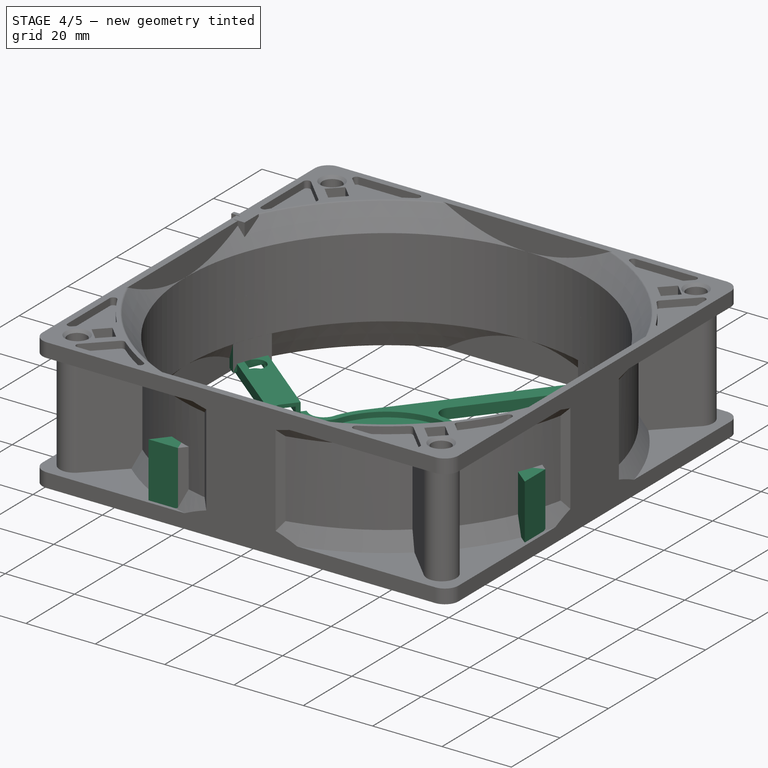
[diagram: stage 4 of 5 — iso view after this stage's code; geometry added in this stage tinted green]
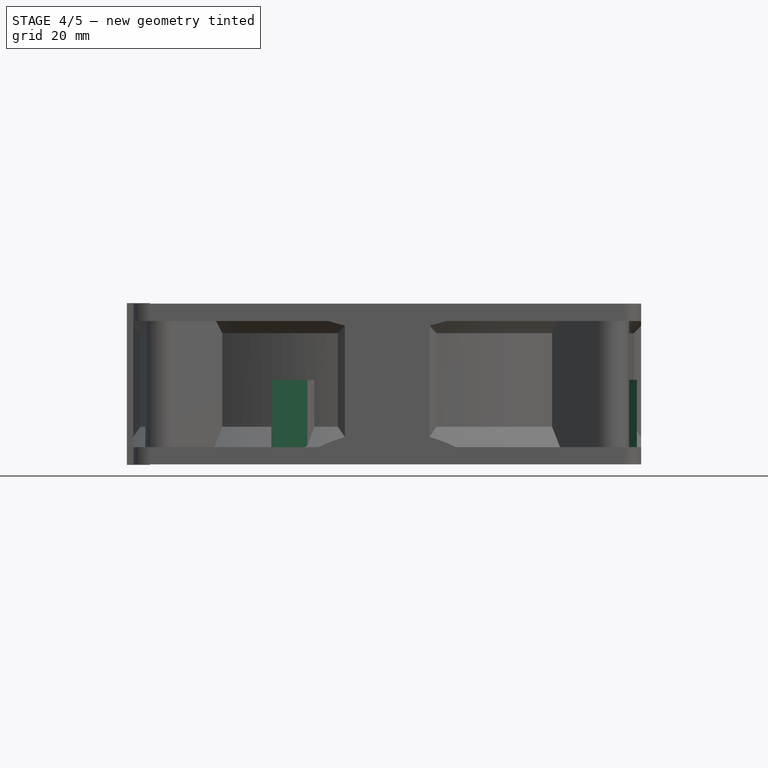
[diagram: stage 4 of 5 — front view after this stage's code; geometry added in this stage tinted green]
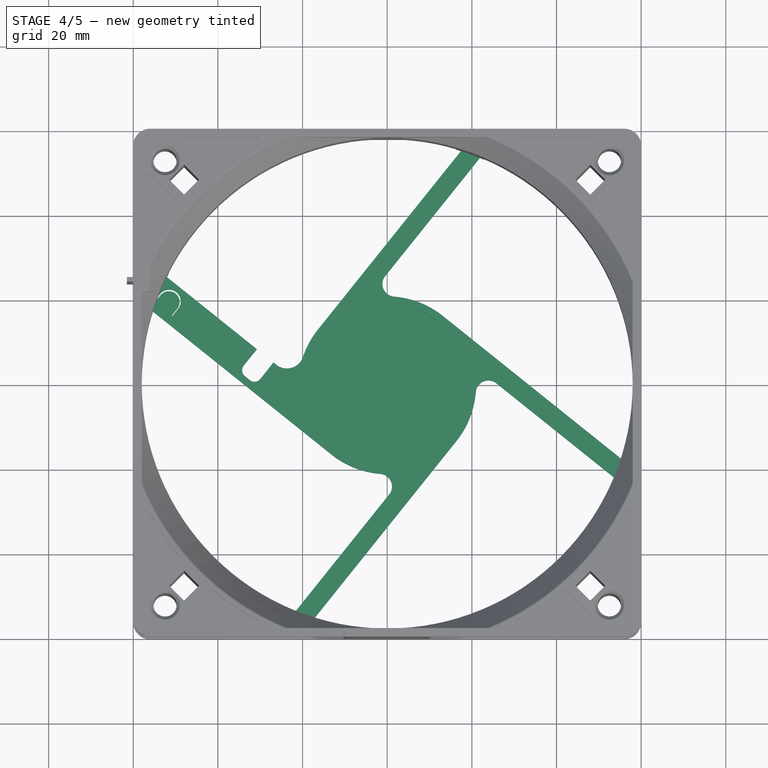
[diagram: stage 4 of 5 — top view after this stage's code; geometry added in this stage tinted green]
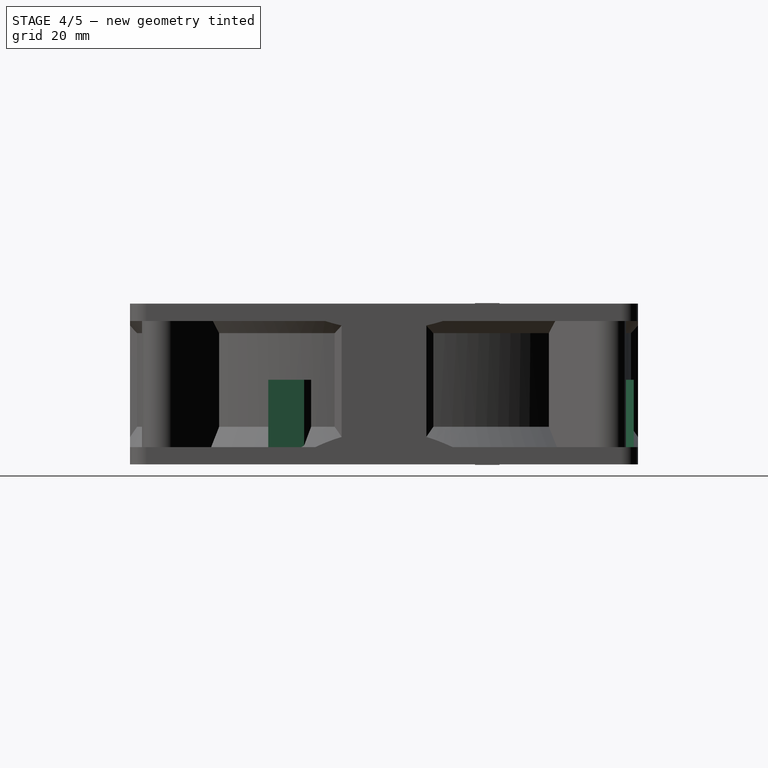
[diagram: stage 4 of 5 — right view after this stage's code; geometry added in this stage tinted green]
FEATURE [Sketcher::SketchObject] Sketch008  label="SkHolder"
  FullyConstrained = true
  sketch-geometry (24):
    g0: ArcOfCircle CenterX=23.927 CenterY=-1.87096 CenterZ=0 NormalX=0 NormalY=0 NormalZ=1 AngleXU=0 Radius=3 StartAngle=0.895354 EndAngle=3.06356
    g1: LineSegment StartX=25.8027 StartY=0.470327 StartZ=0 EndX=59.5 EndY=-26.5263 EndZ=0
    g2: LineSegment StartX=59.5 StartY=-20.7603 StartZ=0 EndX=13.1301 EndY=16.389 EndZ=0
    g3: ArcOfCircle CenterX=-7e-16 CenterY=5.2e-15 CenterZ=0 NormalX=0 NormalY=0 NormalZ=1 AngleXU=0 Radius=21 StartAngle=0.895354 EndAngle=1.49276
    g4: LineSegment StartX=59.5 StartY=-20.7603 StartZ=0 EndX=59.5 EndY=-26.5263 EndZ=0
    g5: LineSegment StartX=59.5 StartY=-20.7603 StartZ=0 EndX=56.6864 EndY=-24.2722 EndZ=0
    g6: ArcOfCircle CenterX=-1.87096 CenterY=-23.927 CenterZ=0 NormalX=0 NormalY=0 NormalZ=1 AngleXU=0 Radius=3 StartAngle=5.60774 EndAngle=7.77594
    g7: LineSegment StartX=0.470327 StartY=-25.8027 StartZ=0 EndX=-26.5263 EndY=-59.5 EndZ=0
    g8: LineSegment StartX=-20.7603 StartY=-59.5 StartZ=0 EndX=16.389 EndY=-13.1301 EndZ=0
    g9: ArcOfCircle CenterX=0 CenterY=0 CenterZ=0 NormalX=0 NormalY=0 NormalZ=1 AngleXU=0 Radius=21 StartAngle=5.60774 EndAngle=6.20515
    g10: LineSegment StartX=-20.7603 StartY=-59.5 StartZ=0 EndX=-26.5263 EndY=-59.5 EndZ=0
    g11: LineSegment StartX=-20.7603 StartY=-59.5 StartZ=0 EndX=-24.2722 EndY=-56.6864 EndZ=0
    g12: ArcOfCircle CenterX=1.87096 CenterY=23.927 CenterZ=0 NormalX=0 NormalY=0 NormalZ=1 AngleXU=0 Radius=3 StartAngle=2.46615 EndAngle=4.63435
    g13: LineSegment StartX=-0.470327 StartY=25.8027 StartZ=0 EndX=26.5263 EndY=59.5 EndZ=0
    g14: LineSegment StartX=20.7603 StartY=59.5 StartZ=0 EndX=-16.389 EndY=13.1301 EndZ=0
    g15: ArcOfCircle CenterX=-4e-16 CenterY=0 CenterZ=0 NormalX=0 NormalY=0 NormalZ=1 AngleXU=0 Radius=21 StartAngle=2.46615 EndAngle=2.81732
    g16: LineSegment StartX=20.7603 StartY=59.5 StartZ=0 EndX=26.5263 EndY=59.5 EndZ=0
    g17: LineSegment StartX=20.7603 StartY=59.5 StartZ=0 EndX=24.2722 EndY=56.6864 EndZ=0
    g18: ArcOfCircle CenterX=-23.6971 CenterY=7.9654 CenterZ=0 NormalX=0 NormalY=0 NormalZ=1 AngleXU=0 Radius=4 StartAngle=4.03695 EndAngle=5.95892
    g19: LineSegment StartX=-26.1981 StartY=4.84367 StartZ=0 EndX=-59.5 EndY=31.5236 EndZ=0
    g20: LineSegment StartX=-59.5 StartY=20.7603 StartZ=0 EndX=-13.1301 EndY=-16.389 EndZ=0
    g21: ArcOfCircle CenterX=0 CenterY=-1e-16 CenterZ=0 NormalX=0 NormalY=0 NormalZ=1 AngleXU=0 Radius=21 StartAngle=4.03695 EndAngle=4.63435
    g22: LineSegment StartX=-59.5 StartY=20.7603 StartZ=0 EndX=-59.5 EndY=31.5236 EndZ=0
    g23: LineSegment StartX=-59.5 StartY=20.7603 StartZ=0 EndX=-54.248 EndY=27.3159 EndZ=0
  constraints (69):
    c: Tangent(g2,g3) = -1.5708
    c: Tangent(g1,g0) = 1.5708
    c: Coincident(g4,g1)
    c: Coincident(g2,g4)
    c: Radius(g0) = 3
    c: Angle(g2,g1) = 0
    c: Angle(g1,g4) = -0.895354
    c: Radius(g3) = 21
    c: Distance(g3,g4) = 59.5
    c: Coincident(g5,g2)
    c: PointOnObject(g5,g1)
    c: Angle(g1,g5) = -1.5708
    c: Distance(g5) = 4.5
    c: PointOnObject(g0,g3)
    c: Tangent(g8,g9) = -1.5708
    c: Tangent(g7,g6) = 1.5708
    c: Coincident(g10,g7)
    c: Coincident(g8,g10)
    c: Equal(g0,g6) = 3
    c: Angle(g8,g7) = 0
    c: Equal(g3,g9) = 21
    c: Coincident(g11,g8)
    c: PointOnObject(g11,g7)
    c: Angle(g7,g11) = -1.5708
    c: Equal(g5,g11) = 4.5
    c: PointOnObject(g6,g9)
    c: Tangent(g9,g0) = 1.5708
    c: Equal(g8,g2)
    c: Angle(g2,g8) = -1.5708
    c: Equal(g10,g4)
    c: Equal(g7,g1)
    c: Tangent(g14,g15) = -1.5708
    c: Tangent(g13,g12) = 1.5708
    c: Coincident(g16,g13)
    c: Coincident(g14,g16)
    c: Angle(g14,g13) = 0
    c: Coincident(g17,g14)
    c: PointOnObject(g17,g13)
    c: Angle(g13,g17) = -1.5708
    c: PointOnObject(g12,g15)
    c: Equal(g17,g11)
    c: Equal(g16,g10)
    c: Equal(g14,g8)
    c: Equal(g13,g7)
    c: Equal(g12,g6)
    c: Equal(g15,g3)
    c: Coincident(g3,g12)
    c: Angle(g13,g2) = -1.5708
    c: Tangent(g20,g21) = -1.5708
    c: Tangent(g19,g18) = 1.5708
    c: Coincident(g22,g19)
    c: Coincident(g20,g22)
    c: Angle(g20,g19) = 0
    c: Coincident(g23,g20)
    c: PointOnObject(g23,g19)
    c: Angle(g19,g23) = -1.5708
    c: PointOnObject(g18,g21)
    c: Equal(g21,g9)
    c: Coincident(g6,g21)
    c: Tangent(g15,g18) = 1.5708
    c: Radius(g18) = 4
    c: Angle(g19,g14) = -1.5708
    c: Distance(g23) = 8.4
    c: Angle(g16,g22) = -1.5708
    c: Equal(g20,g8)
    c: Angle(g-1,g22) = 1.5708
    c: PointOnObject(g21,g-2)
    c: PointOnObject(g15,g-1)
    c: Coincident(g9,g-1)
FEATURE [PartDesign::Pad] Pad004
  AlongSketchNormal = false
  Direction = (0,0,1)
  Length = 3
  Length2 = 100
  Profile = -> Sketch008
  Refine = true
  Type = 0
FEATURE [Sketcher::SketchObject] Sketch009
  FullyConstrained = true
  Placement = pos=(0,0,1.9e-14) rot=(1,0,0;3.14159rad)
  sketch-geometry (1):
    g0: Circle CenterX=0 CenterY=0 CenterZ=0 NormalX=0 NormalY=0 NormalZ=1 AngleXU=0 Radius=20
  constraints (2):
    c: Coincident(g0,g-1)
    c: Radius(g0) = 20
FEATURE [PartDesign::Pocket] Pocket004
  BaseFeature = -> Pad004
  Direction = (0,0,1)
  Length = 0.5
  Length2 = 100
  Profile = -> Sketch009
  Type = 0
FEATURE [Sketcher::SketchObject] Sketch010
  FullyConstrained = true
  Placement = pos=(0,0,1.9e-14) rot=(1,0,0;3.14159rad)
  sketch-geometry (13):
    g0: LineSegment StartX=-51.5336 StartY=-19.7819 StartZ=0 EndX=0 EndY=0 EndZ=0
    g1: ArcOfCircle CenterX=-31.3742 CenterY=-2.65346 CenterZ=0 NormalX=0 NormalY=0 NormalZ=1 AngleXU=0 Radius=1.8 StartAngle=0.675442 EndAngle=2.24624
    g2: LineSegment StartX=-32.4996 StartY=-1.24869 StartZ=0 EndX=-33.5922 EndY=-2.12403 EndZ=0
    g3: ArcOfCircle CenterX=-32.4668 CenterY=-3.5288 CenterZ=0 NormalX=0 NormalY=0 NormalZ=1 AngleXU=0 Radius=1.8 StartAngle=2.24624 EndAngle=3.81704
    g4: LineSegment StartX=-33.8716 StartY=-4.65424 StartZ=0 EndX=-30.7453 EndY=-8.55639 EndZ=0
    g5: LineSegment StartX=-30.7453 StartY=-8.55639 StartZ=0 EndX=-26.8432 EndY=-5.43018 EndZ=0
    g6: LineSegment StartX=-26.8432 StartY=-5.43018 StartZ=0 EndX=-29.9694 EndY=-1.52803 EndZ=0
    g7: LineSegment StartX=-32.4668 StartY=-3.5288 StartZ=0 EndX=-31.3742 EndY=-2.65346 EndZ=0
    g8: LineSegment StartX=-32.4996 StartY=-1.24869 StartZ=0 EndX=-33.5 EndY=0 EndZ=0
    g9: LineSegment StartX=-53.6798 StartY=-21.5013 StartZ=0 EndX=-55.0554 EndY=-19.7844 EndZ=0
    g10: LineSegment StartX=-55.0554 StartY=-19.7844 StartZ=0 EndX=-50.763 EndY=-16.3455 EndZ=0
    g11: LineSegment StartX=-50.763 StartY=-16.3455 StartZ=0 EndX=-49.3875 EndY=-18.0625 EndZ=0
    g12: ArcOfCircle CenterX=-51.5336 CenterY=-19.7819 CenterZ=0 NormalX=0 NormalY=0 NormalZ=1 AngleXU=0 Radius=2.75 StartAngle=3.81704 EndAngle=6.95863
  constraints (35):
    c: Distance(g0) = 55.2
    c: Angle(g-1,g0) = 0.366519
    c: Coincident(g0,g-1)
    c: Equal(g3,g1)
    c: Tangent(g3,g2) = -1.5708
    c: Tangent(g2,g1) = -1.5708
    c: Coincident(g5,g4)
    c: Coincident(g6,g5)
    c: Tangent(g4,g3) = -1.5708
    c: Tangent(g6,g1) = -1.5708
    c: Coincident(g7,g3)
    c: Coincident(g7,g1)
    c: PointOnObject(g3,g7)
    c: Radius(g3) = 1.8
    c: Angle(g6,g5) = 1.5708
    c: Angle(g6,g-1) = 0.895354
    c: Distance(g4) = 5
    c: Distance(g5) = 5
    c: Coincident(g8,g1)
    c: Distance(g8) = 1.6
    c: Angle(g8,g2) = 1.5708
    c: Angle(g5,g4) = 1.5708
    c: PointOnObject(g8,g-1)
    c: Distance(g8,g0) = 33.5
    c: Coincident(g9,g10)
    c: Coincident(g10,g11)
    c: Coincident(g12,g9)
    c: Angle(g9,g10) = 1.5708
    c: Equal(g9,g11)
    c: Angle(g10,g11) = 1.5708
    c: Tangent(g12,g11) = 1.5708
    c: Distance(g10) = 5.5
    c: Distance(g11) = 2.2
    c: Angle(g4,g11) = 0
    c: Coincident(g0,g12)
FEATURE [PartDesign::Pocket] Pocket005
  BaseFeature = -> Pocket004
  Direction = (0,0,1)
  Length = 3.1
  Length2 = 100
  Profile = -> Sketch010
  Type = 0
FEATURE [Sketcher::SketchObject] Sketch011
  FullyConstrained = true
  Placement = pos=(0,0,1.9e-14) rot=(1,0,0;3.14159rad)
  sketch-geometry (11):
    g0: LineSegment StartX=-58.859 StartY=-22.6251 StartZ=0 EndX=-32.5975 EndY=-1.5857 EndZ=0
    g1: LineSegment StartX=-27.7 StartY=-4.5 StartZ=0 EndX=-56.1077 EndY=-27.2588 EndZ=0
    g2: ArcOfCircle CenterX=-31.347 CenterY=-3.14656 CenterZ=0 NormalX=0 NormalY=0 NormalZ=1 AngleXU=0 Radius=2 StartAngle=0.675442 EndAngle=2.24624
    g3: LineSegment StartX=-29.7861 StartY=-1.89607 StartZ=0 EndX=-27.7 EndY=-4.5 EndZ=0
    g4: LineSegment StartX=-56.1077 StartY=-27.2588 StartZ=0 EndX=-58.859 EndY=-22.6251 EndZ=0
    g5: LineSegment StartX=-27.7 StartY=-4.5 StartZ=0 EndX=-27.7 EndY=0 EndZ=0
    g6: LineSegment StartX=-56.1077 StartY=-27.2588 StartZ=0 EndX=-52.2055 EndY=-24.1326 EndZ=0
    g7: LineSegment StartX=-52.2055 StartY=-24.1326 StartZ=0 EndX=-51.3927 EndY=-25.1472 EndZ=0
    g8: LineSegment StartX=-51.3927 StartY=-25.1472 StartZ=0 EndX=-46.3199 EndY=-21.0831 EndZ=0
    g9: LineSegment StartX=-46.3199 StartY=-21.0831 StartZ=0 EndX=-47.1327 EndY=-20.0685 EndZ=0
    g10: LineSegment StartX=-47.1327 StartY=-20.0685 StartZ=0 EndX=-27.7 EndY=-4.5 EndZ=0
  constraints (31):
    c: Angle(g0,g1) = 0
    c: Coincident(g3,g1)
    c: Tangent(g3,g2) = 1.5708
    c: Tangent(g0,g2) = 1.5708
    c: Angle(g3,g1) = 1.5708
    c: Angle(g1,g-2) = 0.895354
    c: Radius(g2) = 2
    c: Coincident(g4,g1)
    c: Coincident(g4,g0)
    c: Angle(g1,g4) = 1.43117
    c: Coincident(g5,g1)
    c: PointOnObject(g5,g-1)
    c: Angle(g5,g-1) = 1.5708
    c: Distance(g5) = 4.5
    c: Distance(g1) = 36.4
    c: Distance(g0) = 33.65
    c: Distance(g-1,g5) = 27.7
    c: Coincident(g4,g6)
    c: PointOnObject(g6,g1)
    c: Coincident(g6,g7)
    c: Coincident(g7,g8)
    c: Coincident(g8,g9)
    c: PointOnObject(g9,g1)
    c: Coincident(g9,g10)
    c: Coincident(g10,g3)
    c: Equal(g7,g9)
    c: Angle(g6,g7) = 1.5708
    c: Angle(g9,g8) = 1.5708
    c: Distance(g8) = 6.5
    c: Distance(g6) = 5
    c: Distance(g7) = 1.3
FEATURE [PartDesign::Pocket] Pocket006
  BaseFeature = -> Pocket005
  Direction = (0,0,1)
  Length = 2
  Length2 = 100
  Profile = -> Sketch011
  Type = 0
FEATURE [Sketcher::SketchObject] Sketch012
  AttachmentOffset = pos=(0,0,-0.1) rot=(0,0,1;0rad)
  FullyConstrained = true
  Placement = pos=(0,0,0.1) rot=(1,0,0;3.14159rad)
  sketch-geometry (6):
    g0: ArcOfCircle CenterX=-51.5862 CenterY=-19.6944 CenterZ=0 NormalX=0 NormalY=0 NormalZ=1 AngleXU=0 Radius=2.55 StartAngle=3.81704 EndAngle=6.95863
    g1: LineSegment StartX=-49.5961 StartY=-18.1 StartZ=0 EndX=-51.972 EndY=-15.1344 EndZ=0
    g2: LineSegment StartX=-53.5763 StartY=-21.2887 StartZ=0 EndX=-55.9522 EndY=-18.3231 EndZ=0
    g3: LineSegment StartX=-55.9522 StartY=-18.3231 StartZ=0 EndX=-51.972 EndY=-15.1344 EndZ=0
    g4: LineSegment StartX=-49.5961 StartY=-18.1 StartZ=0 EndX=-29.5 EndY=-2 EndZ=0
    g5: LineSegment StartX=-29.5 StartY=-2 StartZ=0 EndX=-29.5 EndY=0 EndZ=0
  constraints (17):
    c: Coincident(g3,g2)
    c: Coincident(g3,g1)
    c: Angle(g2,g3) = 1.5708
    c: Angle(g3,g1) = 1.5708
    c: Tangent(g2,g0) = 1.5708
    c: Tangent(g1,g0) = -1.5708
    c: Coincident(g4,g0)
    c: Distance(g4) = 25.75
    c: Angle(g4,g1) = 1.5708
    c: Distance(g3) = 5.1
    c: Distance(g2) = 3.8
    c: Angle(g4,g-2) = 0.895354
    c: Coincident(g5,g4)
    c: Angle(g5,g-1) = 1.5708
    c: Distance(g5) = 2
    c: PointOnObject(g5,g-1)
    c: Distance(g-1,g5) = 29.5
FEATURE [PartDesign::Pad] Pad005
  AlongSketchNormal = false
  BaseFeature = -> Pocket006
  Direction = (0,0,-1)
  Length = 0.7
  Length2 = 100
  Profile = -> Sketch012
  Reversed = true
  Type = 0
FEATURE [Sketcher::SketchObject] Sketch013
  FullyConstrained = true
  Placement = pos=(0,0,3) rot=(0,0,1;0rad)
  sketch-geometry (7):
    g0: ArcOfCircle CenterX=0 CenterY=0 CenterZ=0 NormalX=0 NormalY=0 NormalZ=1 AngleXU=0 Radius=19.3 StartAngle=4.03695 EndAngle=9.0984
    g1: ArcOfCircle CenterX=-23.6803 CenterY=8.01532 CenterZ=0 NormalX=0 NormalY=0 NormalZ=1 AngleXU=0 Radius=5.7 StartAngle=4.03695 EndAngle=5.95681
    g2: LineSegment StartX=-12.0672 StartY=-15.0623 StartZ=0 EndX=-33.1388 EndY=1.81924 EndZ=0
    g3: LineSegment StartX=-27.2441 StartY=3.56687 StartZ=0 EndX=-23.6803 EndY=8.01532 EndZ=0
    g4: LineSegment StartX=-23.6803 StartY=8.01532 StartZ=0 EndX=-18.2812 EndY=6.18783 EndZ=0
    g5: LineSegment StartX=-27.2441 StartY=3.56687 StartZ=0 EndX=-29.9816 EndY=5.76003 EndZ=0
    g6: LineSegment StartX=-29.9816 StartY=5.76003 StartZ=0 EndX=-33.1388 EndY=1.81924 EndZ=0
  constraints (17):
    c: Coincident(g0,g-1)
    c: Radius(g0) = 19.3
    c: Radius(g1) = 5.7
    c: Tangent(g1,g0) = 1.5708
    c: Tangent(g2,g0) = 1.5708
    c: Coincident(g3,g1)
    c: Coincident(g3,g1)
    c: Coincident(g4,g1)
    c: Coincident(g4,g0)
    c: Angle(g3,g4) = 1.91986
    c: Tangent(g1,g5) = 1.5708
    c: Coincident(g5,g6)
    c: Coincident(g6,g2)
    c: Angle(g2,g6) = 1.5708
    c: Angle(g6,g5) = 1.5708
    c: Distance(g2) = 27
    c: Angle(g-2,g2) = 0.895354
FEATURE [PartDesign::Pocket] Pocket007
  BaseFeature = -> Pad005
  Direction = (0,0,-1)
  Length = 1.5
  Length2 = 100
  Profile = -> Sketch013
  Type = 0
FEATURE [Sketcher::SketchObject] Sketch015
  FullyConstrained = true
  Placement = pos=(0,0,1) rot=(1,0,0;3.14159rad)
  expr: Constraints[10] = <<dd>>.ddRadInner
  expr: Constraints[4] = <<dd>>.ddRadInner + 1 mm
  sketch-geometry (25):
    g0: LineSegment StartX=-18.8761 StartY=59 StartZ=0 EndX=-16.2207 EndY=55.6856 EndZ=0
    g1: LineSegment StartX=-16.2207 StartY=55.6856 StartZ=0 EndX=-22.811 EndY=53.3259 EndZ=0
    g2: LineSegment StartX=-22.811 StartY=53.3259 StartZ=0 EndX=-27.3568 EndY=59 EndZ=0
    g3: LineSegment StartX=-27.3568 StartY=59 StartZ=0 EndX=-18.8761 EndY=59 EndZ=0
    g4: Circle CenterX=0 CenterY=0 CenterZ=0 NormalX=0 NormalY=0 NormalZ=1 AngleXU=0 Radius=58
    g5: ArcOfCircle CenterX=2.13e-14 CenterY=7.1e-15 CenterZ=0 NormalX=0 NormalY=0 NormalZ=1 AngleXU=0 Radius=58 StartAngle=1.85424 EndAngle=1.97501
    g6: LineSegment StartX=-19.5159 StartY=54.5058 StartZ=0 EndX=2.13e-14 EndY=7.1e-15 EndZ=0
    g7: LineSegment StartX=59 StartY=18.8761 StartZ=0 EndX=55.6856 EndY=16.2207 EndZ=0
    g8: LineSegment StartX=55.6856 StartY=16.2207 StartZ=0 EndX=53.3259 EndY=22.811 EndZ=0
    g9: LineSegment StartX=53.3259 StartY=22.811 StartZ=0 EndX=59 EndY=27.3568 EndZ=0
    g10: LineSegment StartX=59 StartY=27.3568 StartZ=0 EndX=59 EndY=18.8761 EndZ=0
    g11: ArcOfCircle CenterX=0 CenterY=0 CenterZ=0 NormalX=0 NormalY=0 NormalZ=1 AngleXU=0 Radius=58 StartAngle=0.283448 EndAngle=0.404211
    g12: LineSegment StartX=54.5058 StartY=19.5159 StartZ=0 EndX=0 EndY=0 EndZ=0
    g13: LineSegment StartX=-59.0273 StartY=-32.3987 StartZ=0 EndX=-51.6132 EndY=-26.4589 EndZ=0
    g14: LineSegment StartX=-51.6132 StartY=-26.4589 StartZ=0 EndX=-55.6805 EndY=-16.2384 EndZ=0
    g15: LineSegment StartX=-55.6805 StartY=-16.2384 StartZ=0 EndX=-59.0273 EndY=-18.9198 EndZ=0
    g16: LineSegment StartX=-59.0273 StartY=-18.9198 StartZ=0 EndX=-59.0273 EndY=-32.3987 EndZ=0
    g17: ArcOfCircle CenterX=2.13e-14 CenterY=7.1e-15 CenterZ=0 NormalX=0 NormalY=0 NormalZ=1 AngleXU=0 Radius=58 StartAngle=3.42536 EndAngle=3.6153
    g18: LineSegment StartX=27.3568 StartY=-59 StartZ=0 EndX=22.811 EndY=-53.3259 EndZ=0
    g19: LineSegment StartX=-54.3924 StartY=-19.4753 StartZ=0 EndX=2.13e-14 EndY=7.1e-15 EndZ=0
    g20: LineSegment StartX=22.811 StartY=-53.3259 StartZ=0 EndX=16.2207 EndY=-55.6856 EndZ=0
    g21: LineSegment StartX=16.2207 StartY=-55.6856 StartZ=0 EndX=18.8761 EndY=-59 EndZ=0
    g22: LineSegment StartX=18.8761 StartY=-59 StartZ=0 EndX=27.3568 EndY=-59 EndZ=0
    g23: ArcOfCircle CenterX=2.13e-14 CenterY=7.1e-15 CenterZ=0 NormalX=0 NormalY=0 NormalZ=1 AngleXU=0 Radius=58 StartAngle=4.99584 EndAngle=5.1166
    g24: LineSegment StartX=19.5159 StartY=-54.5058 StartZ=0 EndX=2.13e-14 EndY=7.1e-15 EndZ=0
  constraints (73):
    c: Angle(g2,g0) = 0
    c: Coincident(g3,g2)
    c: Coincident(g3,g0)
    c: Angle(g3,g-2) = 1.5708
    c: DistanceY(g-1,g0) = 59
    c: Angle(g1,g2) = 1.90241
    c: Distance(g1) = 7
    c: Coincident(g1,g2)
    c: Coincident(g0,g1)
    c: Coincident(g4,g-1)
    c: Radius(g4) = 58
    c: PointOnObject(g0,g4)
    c: Angle(g2,g-1) = 0.895354
    c: PointOnObject(g2,g4)
    c: Coincident(g5,g2)
    c: Coincident(g5,g0)
    c: Equal(g5,g4)
    c: Coincident(g6,g5)
    c: Symmetric(g1,g1,g6)
    c: Angle(g6,g0) = 0.331613
    c: Angle(g9,g7) = 0
    c: Coincident(g10,g9)
    c: Coincident(g10,g7)
    c: Angle(g8,g9) = 1.90241
    c: Equal(g1,g8) = 7
    c: Coincident(g8,g9)
    c: Coincident(g7,g8)
    c: Coincident(g11,g9)
    c: Coincident(g11,g7)
    c: Coincident(g12,g11)
    c: Symmetric(g8,g8,g12)
    c: Angle(g12,g7) = 0.331613
    c: Angle(g-2,g10) = 0
    c: PointOnObject(g9,g4)
    c: PointOnObject(g11,g-1)
    c: PointOnObject(g11,g-2)
    c: Angle(g12,g6) = 1.5708
    c: Coincident(g16,g15)
    c: Coincident(g16,g13)
    c: Angle(g14,g15) = -1.27409
    c: Distance(g14) = 11
    c: Coincident(g14,g15)
    c: Coincident(g13,g14)
    c: Coincident(g17,g15)
    c: Coincident(g17,g13)
    c: Coincident(g19,g17)
    c: Angle(g19,g13) = 0.331613
    c: Angle(g21,g18) = 0
    c: Coincident(g22,g21)
    c: Coincident(g22,g18)
    c: Angle(g20,g21) = -1.23918
    c: Coincident(g20,g21)
    c: Coincident(g18,g20)
    c: Coincident(g23,g21)
    c: Coincident(g23,g18)
    c: Coincident(g24,g23)
    c: Symmetric(g20,g20,g24)
    c: Angle(g24,g18) = 0.331613
    c: Angle(g24,g19) = -1.5708
    c: Angle(g24,g12) = 1.5708
    c: Coincident(g23,g17)
    c: Coincident(g23,g5)
    c: Angle(g-1,g22) = 0
    c: Angle(g-2,g16) = 0
    c: PointOnObject(g18,g4)
    c: PointOnObject(g15,g4)
    c: Angle(g15,g13) = 0
    c: Equal(g9,g2)
    c: Angle(g14,g19) = 1.53589
    c: Equal(g18,g9)
    c: Equal(g10,g22)
    c: Distance(g13) = 9.5
    c: PointOnObject(g19,g14)
FEATURE [PartDesign::Pad] Pad006
  BaseFeature = -> Pocket007
  Direction = (0,0,-1)
  Length = 19
  Length2 = 10
  Profile = -> Sketch015
  ReferenceAxis = -> Sketch015 [N_Axis]
  Reversed = true
  Type = 0
  expr: Length = <<dd>>.ddHeight / 2
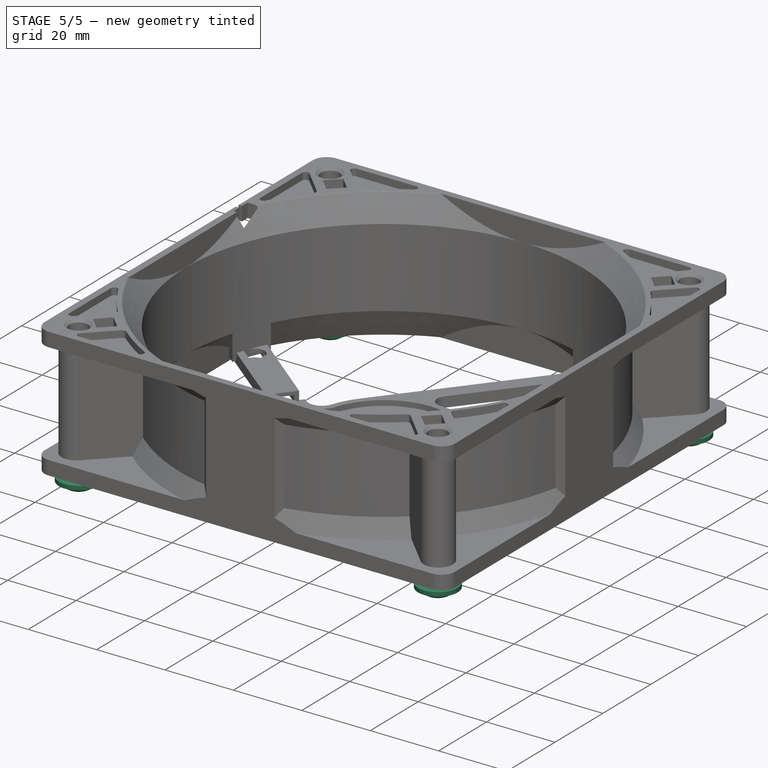
[diagram: stage 5 of 5 — iso view after this stage's code; geometry added in this stage tinted green]
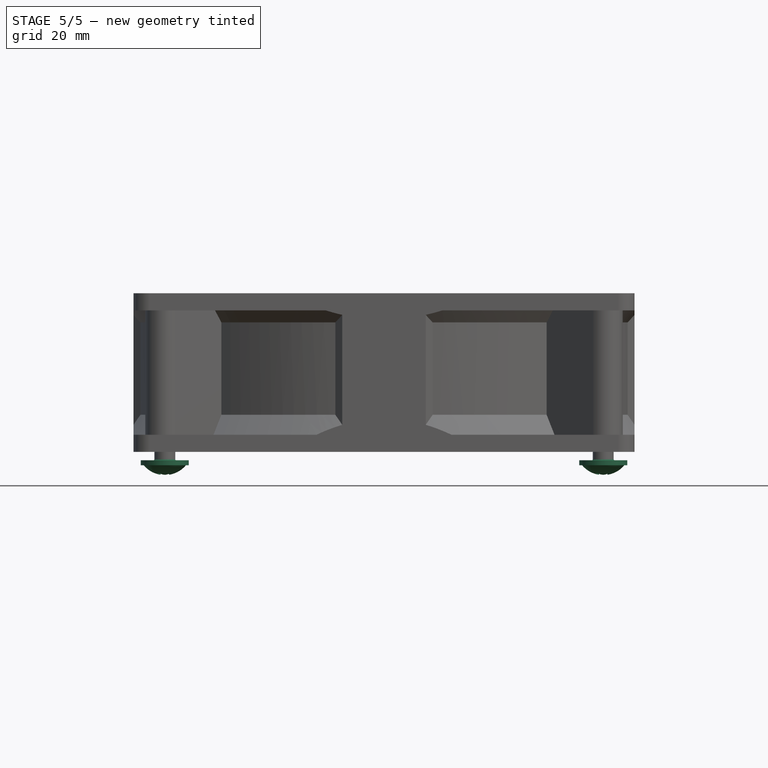
[diagram: stage 5 of 5 — front view after this stage's code; geometry added in this stage tinted green]
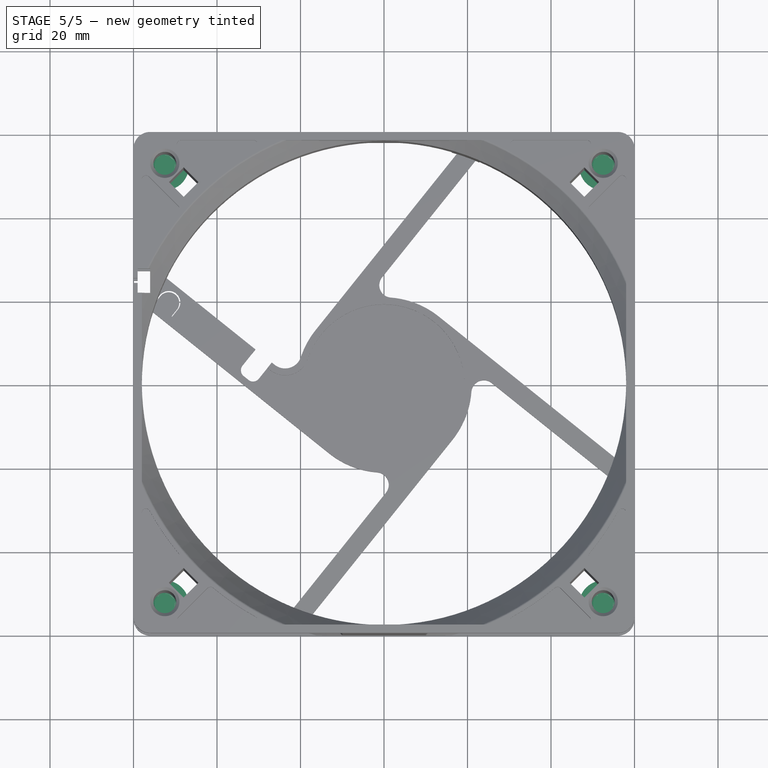
[diagram: stage 5 of 5 — top view after this stage's code; geometry added in this stage tinted green]
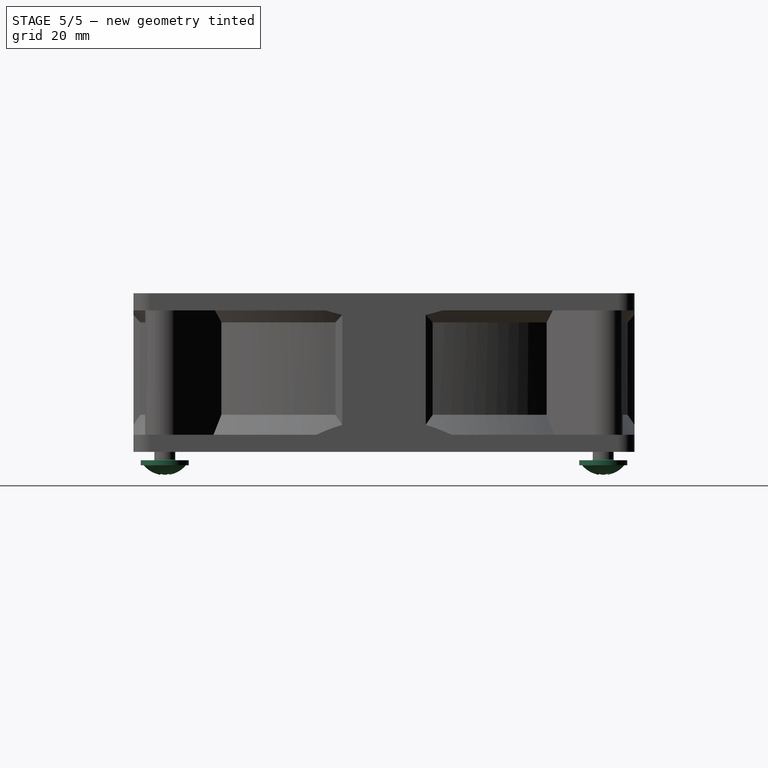
[diagram: stage 5 of 5 — right view after this stage's code; geometry added in this stage tinted green]
FEATURE [Sketcher::SketchObject] Sketch017  label="SkRad001"
  AttachmentOffset = pos=(0,0,0) rot=(0,-1,0;1.5708rad)
  FullyConstrained = true
  Placement = pos=(0,0,0) rot=(1,0,0;1.5708rad)
  expr: Constraints[19] = <<dd>>.ddAngleLimitDown
  expr: Constraints[20] = <<dd>>.ddAngleLimitUp
  expr: Constraints[21] = <<dd>>.ddRadGap + 5 mm
  expr: Constraints[3] = <<dd>>.ddRadGap
  expr: Constraints[5] = <<dd>>.ddRadInner
  expr: Constraints[8] = <<dd>>.ddHeight
  sketch-geometry (8):
    g0: LineSegment StartX=-58 StartY=31.5 StartZ=0 EndX=-58 EndY=8.5 EndZ=0
    g1: LineSegment StartX=-58 StartY=8.5 StartZ=0 EndX=-62.5626 EndY=0.257845 EndZ=0
    g2: ArcOfCircle CenterX=-63 CenterY=0.5 CenterZ=0 NormalX=0 NormalY=0 NormalZ=1 AngleXU=0 Radius=0.5 StartAngle=4.71239 EndAngle=5.77761
    g3: LineSegment StartX=-58 StartY=31.5 StartZ=0 EndX=-62.5962 EndY=37.7948 EndZ=0
    g4: ArcOfCircle CenterX=-63 CenterY=37.5 CenterZ=0 NormalX=0 NormalY=0 NormalZ=1 AngleXU=0 Radius=0.5 StartAngle=0.630676 EndAngle=1.5708
    g5: LineSegment StartX=-63 StartY=0 StartZ=0 EndX=-68 EndY=0 EndZ=0
    g6: LineSegment StartX=-68 StartY=0 StartZ=0 EndX=-68 EndY=38 EndZ=0
    g7: LineSegment StartX=-68 StartY=38 StartZ=0 EndX=-63 EndY=38 EndZ=0
  constraints (22):
    c: Tangent(g1,g2) = 1.5708
    c: Radius(g2) = 0.5
    c: PointOnObject(g2,g-1)
    c: Distance(g2,g0) = 5
    c: Angle(g-1,g0) = 1.5708
    c: Distance(g-1,g0) = 58
    c: Tangent(g3,g4) = -1.5708
    c: Radius(g4) = 0.5
    c: Distance(g4,g2) = 38
    c: Coincident(g6,g5)
    c: Coincident(g6,g7)
    c: Angle(g6,g7) = 1.5708
    c: Equal(g7,g5)
    c: Angle(g5,g6) = 1.5708
    c: PointOnObject(g5,g-1)
    c: Tangent(g5,g2) = 1.5708
    c: Tangent(g7,g4) = 1.5708
    c: Coincident(g0,g3)
    c: Coincident(g0,g1)
    c: Distance(g0,g5) = 8.5
    c: Distance(g0,g7) = 6.5
    c: Distance(g0,g6) = 10
FEATURE [PartDesign::Groove] Groove001
  Angle = 360
  Axis = (0,2e-16,1)
  Base = (0,0,0)
  BaseFeature = -> Pad006
  Profile = -> Sketch017
  ReferenceAxis = -> Sketch017 [V_Axis]
FEATURE [App::Link] Link  label="M4x8-Screw001"
  LinkPlacement = pos=(105,0,0) rot=(0,0,1;0rad)
  LinkTransform = true
  LinkedObject = -> Screw
  Placement = pos=(105,0,0) rot=(0,0,1;0rad)
FEATURE [App::Link] Link001  label="M4x8-Screw002"
  LinkPlacement = pos=(0,105,0) rot=(0,0,1;0rad)
  LinkTransform = true
  LinkedObject = -> Link
  Placement = pos=(0,105,0) rot=(0,0,1;0rad)
FEATURE [App::Link] Link002  label="M4x8-Screw003"
  LinkPlacement = pos=(-105,0,0) rot=(0,0,1;0rad)
  LinkTransform = true
  LinkedObject = -> Link001
  Placement = pos=(-105,0,0) rot=(0,0,1;0rad)
FEATURE [Part::FeaturePython] Screw  label="M5x8-Screw"  # Fasteners workbench fastener (typed FeaturePython)
  AttacherType = Attacher::AttachEngine3D
  AttachmentOffset = pos=(0,0,2) rot=(0,0,1;0rad)
  Placement = pos=(-52.5,-52.5,-2) rot=(1,0,0;3.14159rad)
  diameter = 4
  invert = false
  leftHanded = false
  length = 1
  lengthCustom = 8
  matchOuter = false
  offset = 0
  thread = false
  type = 25
FEATURE [Part::Compound] Compound  label="Screws"
  Links = -> [Screw,Link,Link001,Link002]
FEATURE [Part::Part2DObjectPython] Circle  # Draft 2D object (typed FeaturePython)
  Area = 1159.63
  FirstAngle = 0
  LastAngle = 0
  MakeFace = true
  Placement = pos=(0,0,0.5) rot=(1,0,0;0rad)
  Radius = 19.2126
FEATURE [Part::Extrusion] Extrude001  label="Label"
  Base = -> Circle
  Dir = (0,0,1)
  DirMode = 2
  FaceMakerClass = Part::FaceMakerBullseye
  LengthFwd = 0.1
  LengthRev = 0
  Reversed = true
  Solid = false
  Symmetric = false
FEATURE [Part::Part2DObjectPython] ShapeString  # Draft 2D object (typed FeaturePython)
  AttachmentOffset = pos=(0,0,0) rot=(0,0,1;3.14159rad)
  FontFile = <path>
  MakeFace = true
  Placement = pos=(16,0,0.4) rot=(0,1,0;3.14159rad)
  Size = 3
  String = 24V FAN
  Tracking = 0
FEATURE [Part::Extrusion] Extrude  label="LabelString"
  Base = -> ShapeString
  Dir = (0,0,-1)
  DirMode = 2
  FaceMakerClass = Part::FaceMakerBullseye
  LengthFwd = 0.01
  LengthRev = 0
  Solid = true
  Symmetric = false
FEATURE [Part::MultiFuse] Fusion001  label="Frame__"
  Refine = true
  Shapes = -> [Body001,Fusion]
FEATURE [Part::Cut] Cut001  label="Frame"
  Base = -> Fusion001
  Refine = true
  Tool = -> Compound002
FEATURE [App::Part] Part  label="Fan_120x120xN"
  Group = -> [Solid,Link,Link001,Link002,Screw,Compound,ShapeString,Extrude,Circle,Extrude001,Body001,Array,Fusion,Fusion001,Extrude002,Sketch014,Body,Cone,Compound002,Body002,Sketch026,Extrude003,Link003,Fusion002,Fusion003,Cut,Sketch036,Extrude004,Array001,Body004,Cut002,Cut001]
  Origin = -> Origin005
note: 1 file-system path scrubbed to <path> (originals preserved in the JSON sidecar)
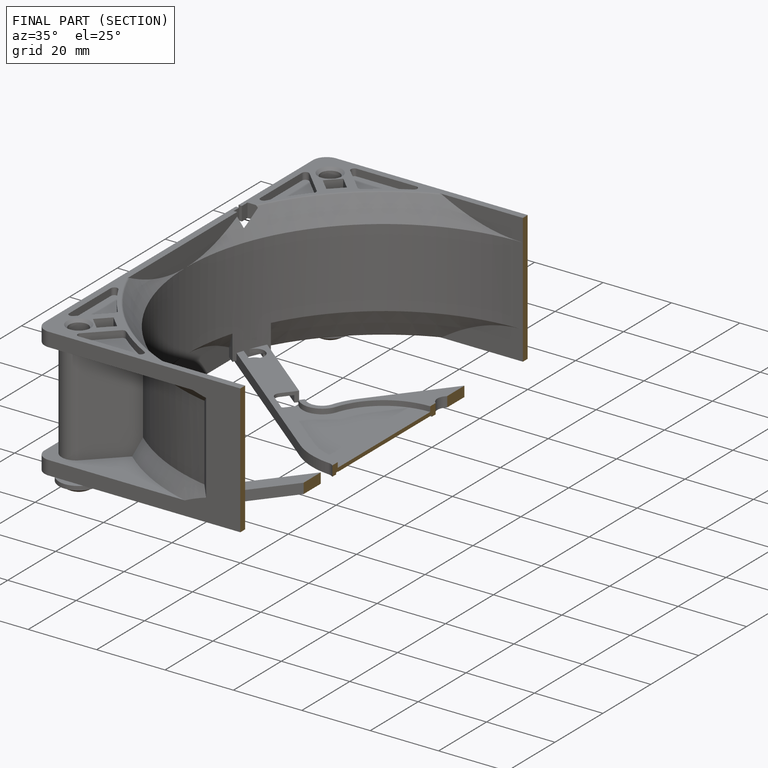
[diagram: finished part — half-section view (interior)]
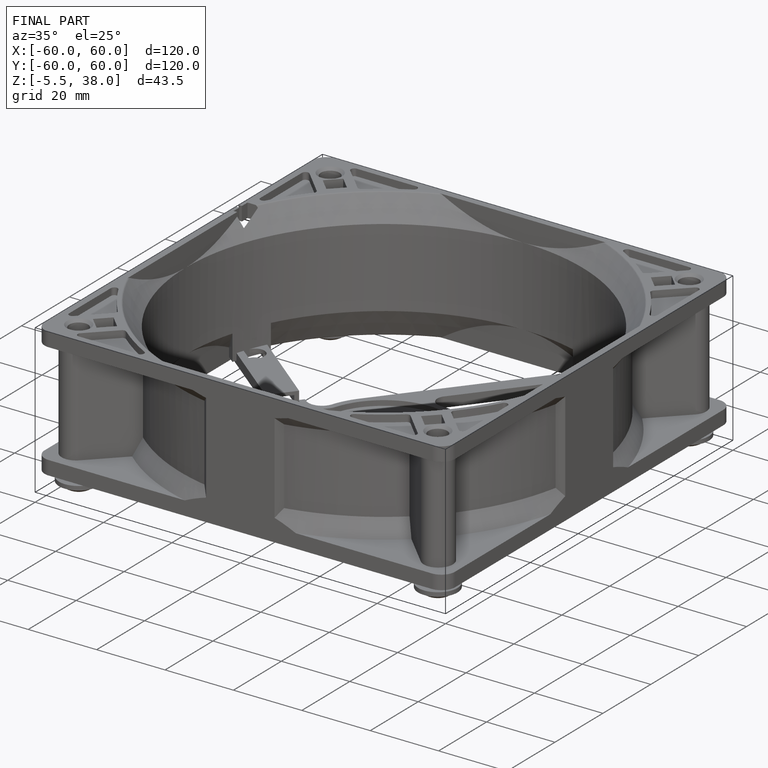
[diagram: finished part — iso view with bounding-box wireframe]
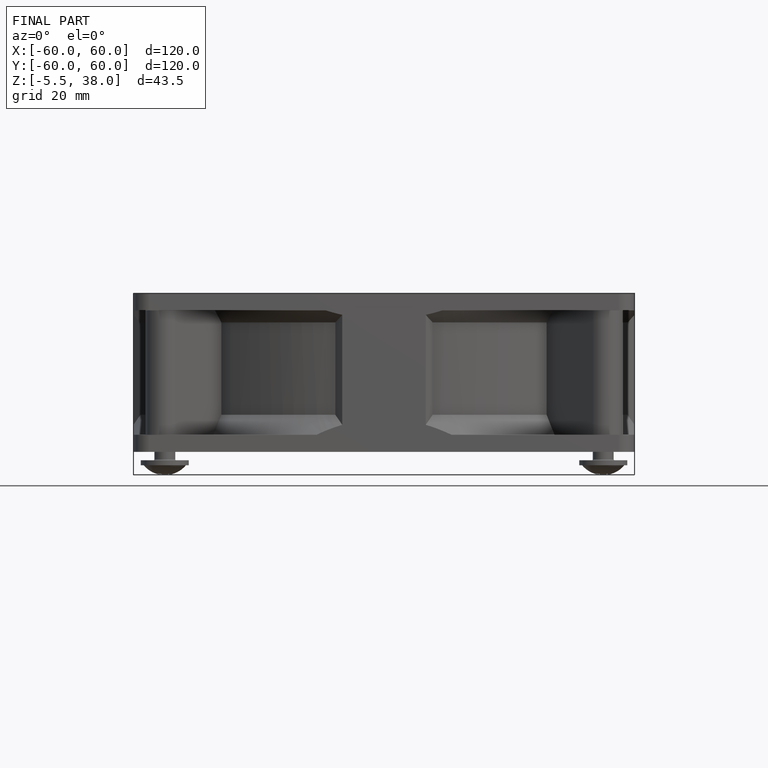
[diagram: finished part — front view with bounding-box wireframe]
